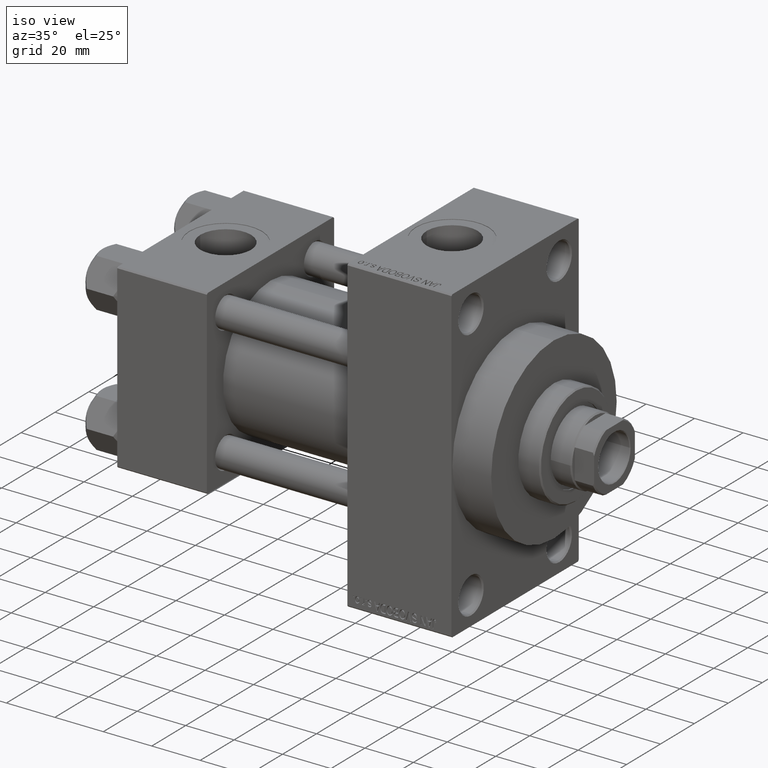
[diagram: clean part render]
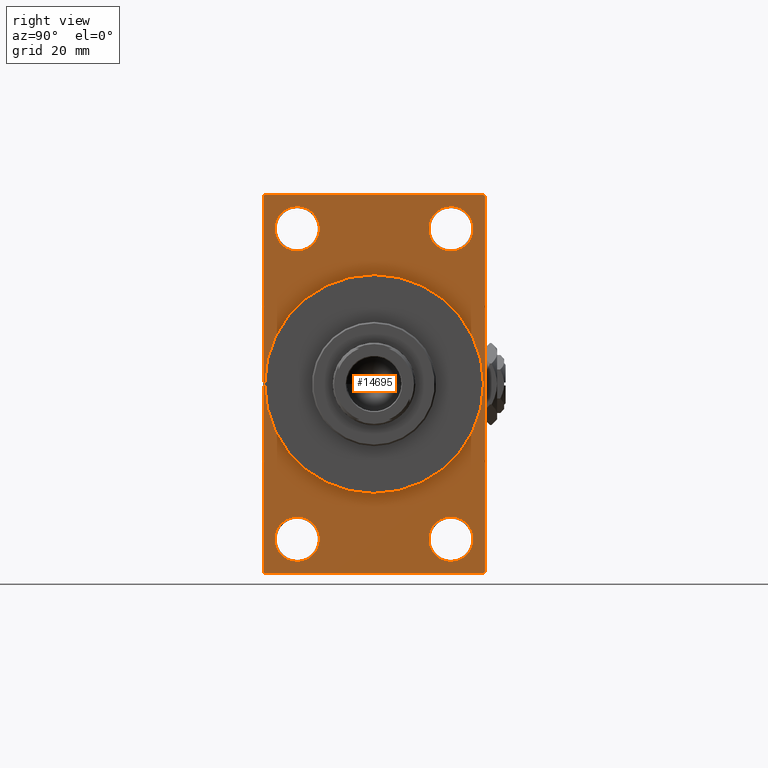
[diagram: tour spotlight — one face highlighted and labeled with its STEP entity id]
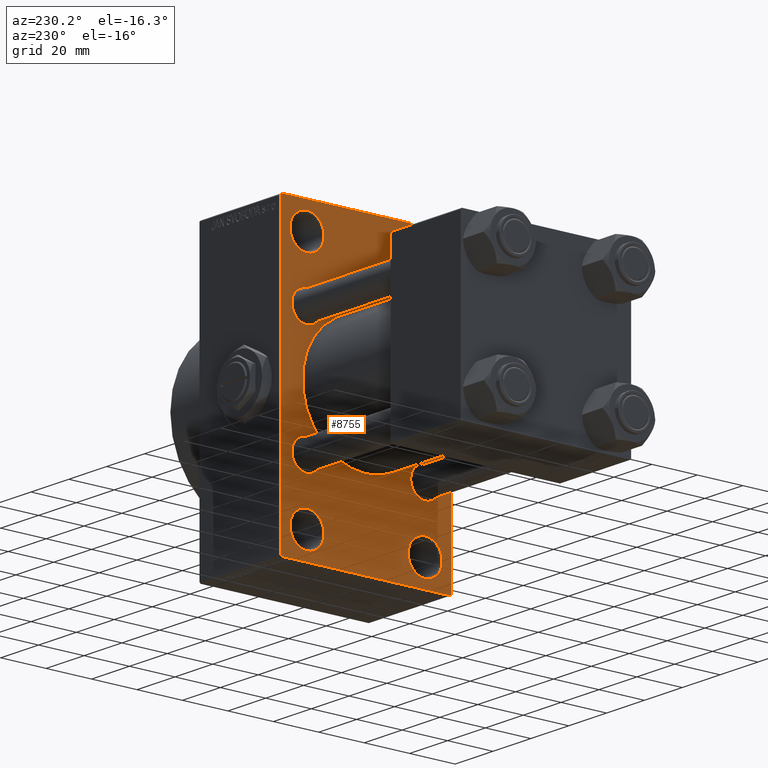
[diagram: tour spotlight — one face highlighted and labeled with its STEP entity id]
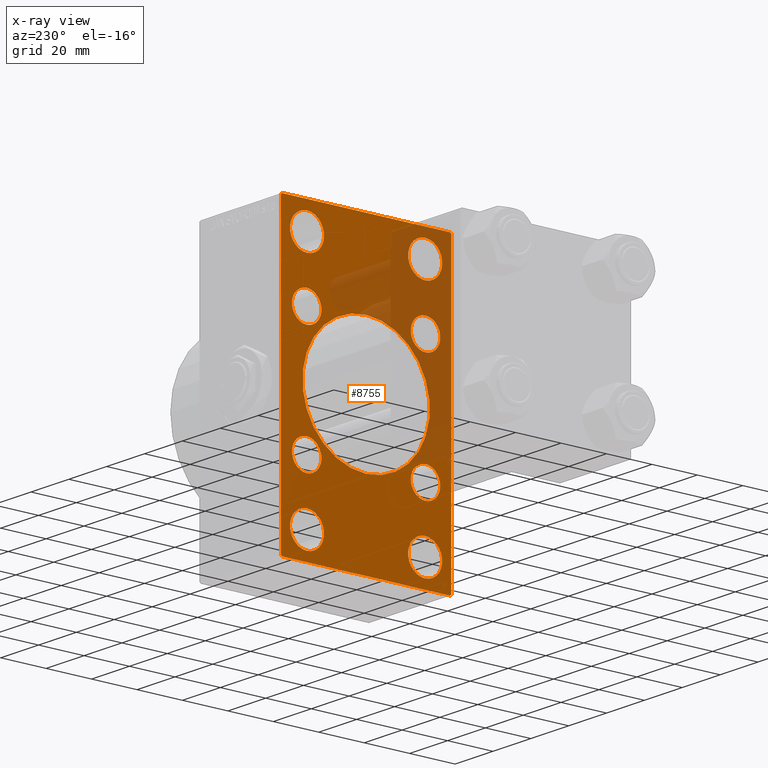
[diagram: x-ray of the same camera — body ghosted, this tour face saturated]
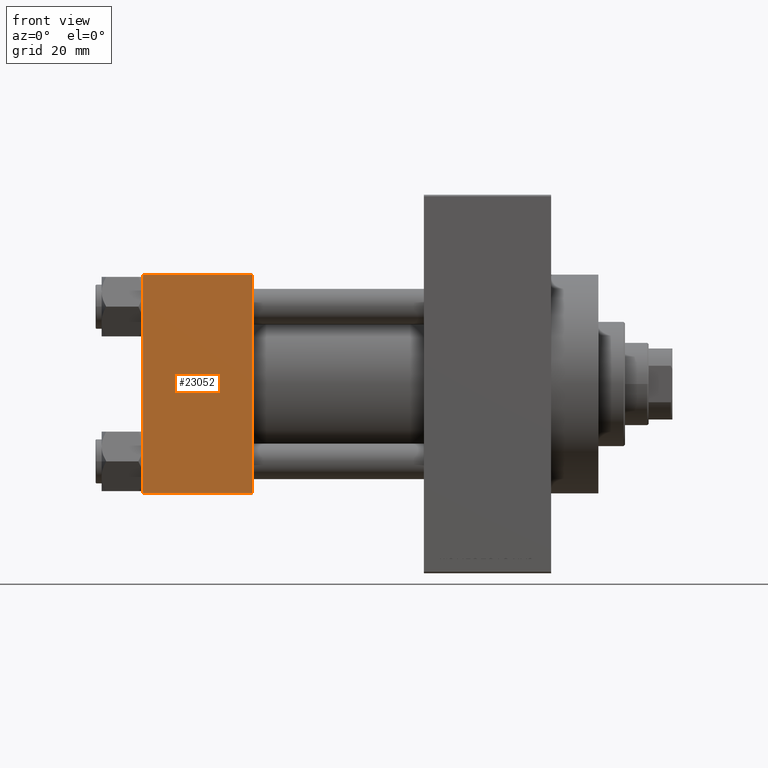
[diagram: tour spotlight — one face highlighted and labeled with its STEP entity id]
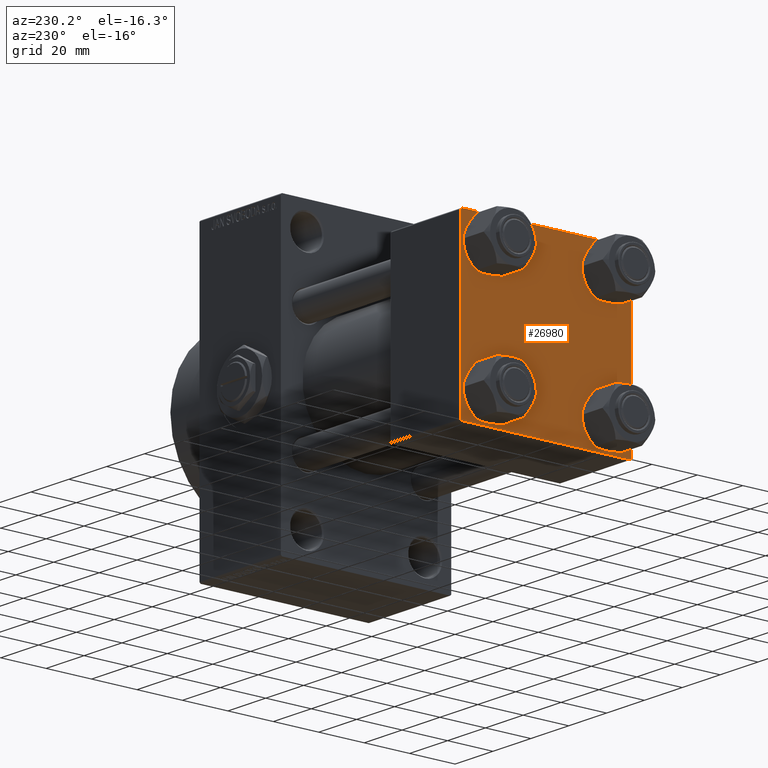
[diagram: tour spotlight — one face highlighted and labeled with its STEP entity id]
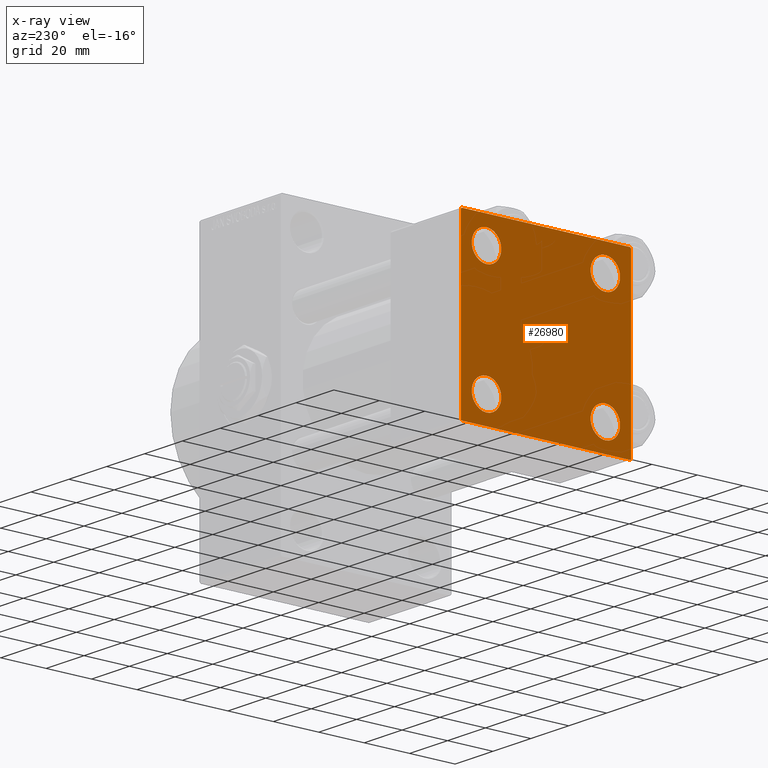
[diagram: x-ray of the same camera — body ghosted, this tour face saturated]
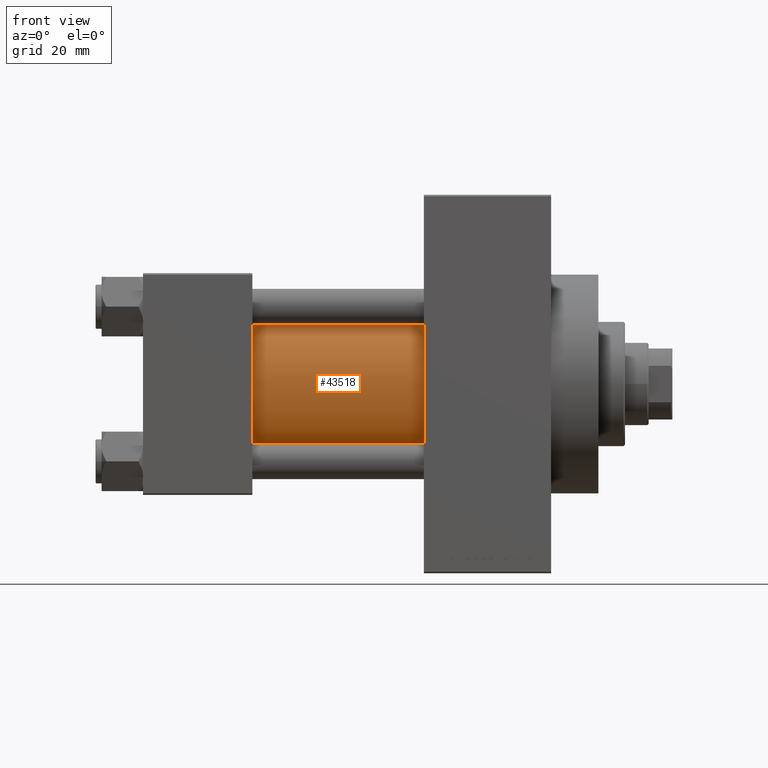
[diagram: tour spotlight — one face highlighted and labeled with its STEP entity id]
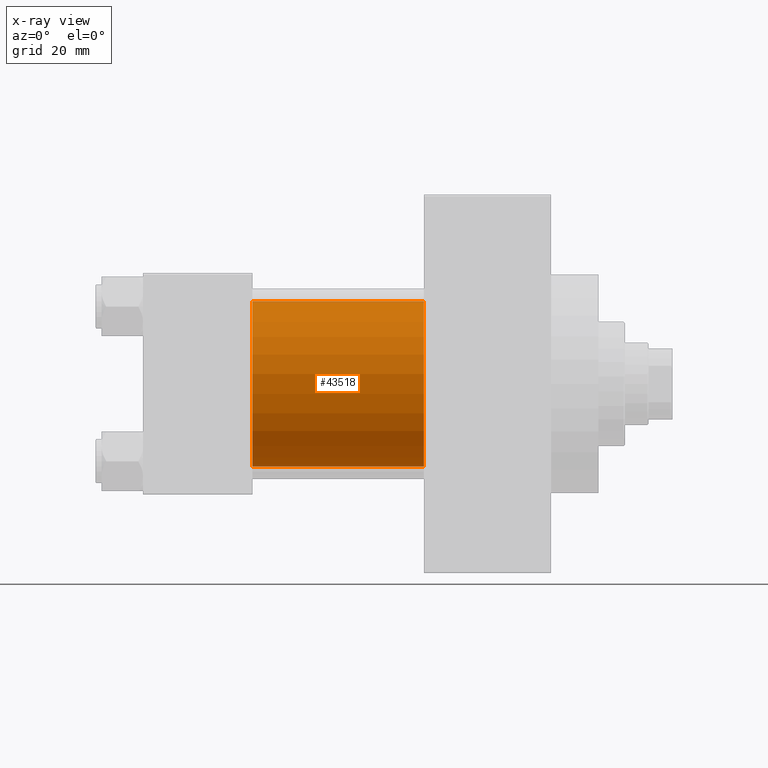
[diagram: x-ray of the same camera — body ghosted, this tour face saturated]
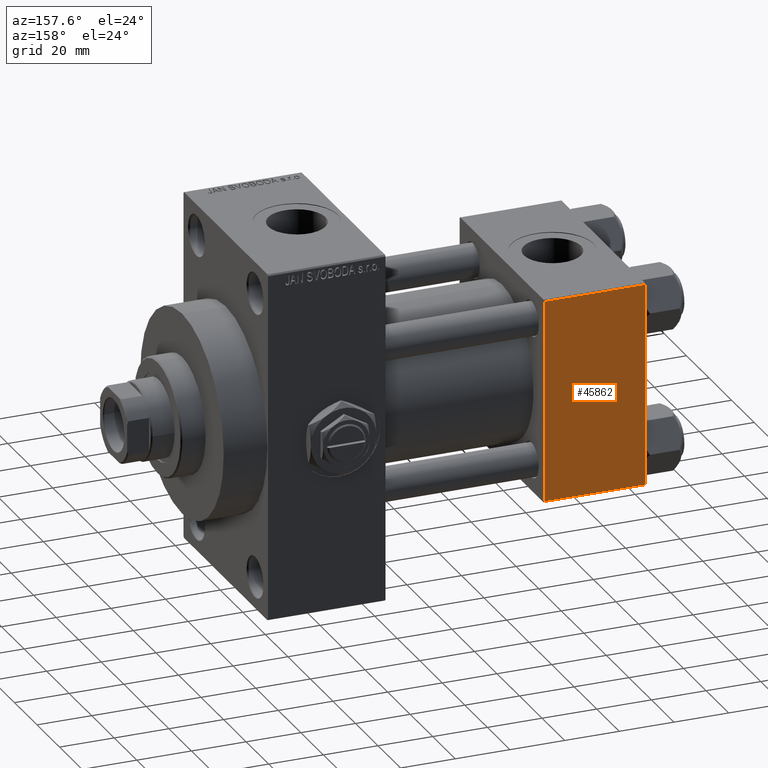
[diagram: tour spotlight — one face highlighted and labeled with its STEP entity id]
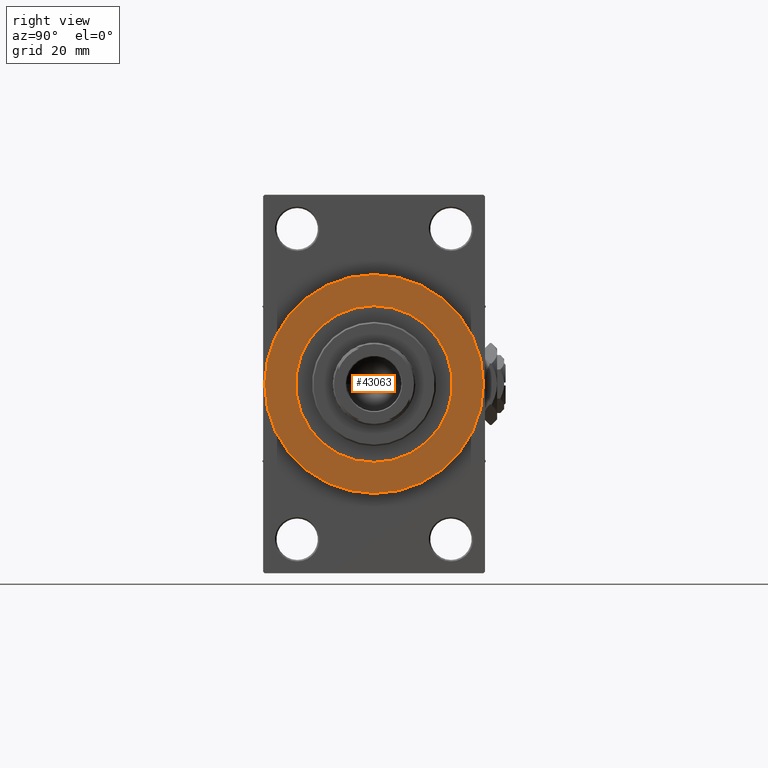
[diagram: tour spotlight — one face highlighted and labeled with its STEP entity id]
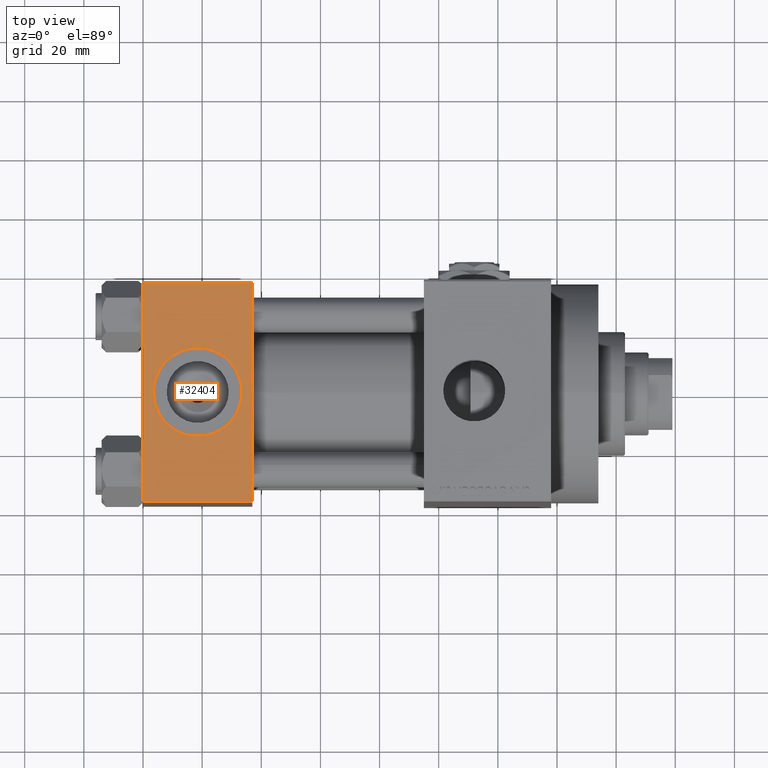
[diagram: tour spotlight — one face highlighted and labeled with its STEP entity id]
A machine part: a face-by-face anatomy tour. The part has 1151 B-rep faces; the first image is the clean iso view, then the 8 largest visible faces are spotlighted one at a time (largest first), each with its STEP entity span.

Face 1 — right view, entity #14695. In plain terms, the highlighted planar face has unit normal (-1, 0, 0).
Definition (entity closure, byte-faithful):
#966 = VERTEX_POINT ( 'NONE', #7745 ) ;
#1483 = EDGE_CURVE ( 'NONE', #20075, #40640, #36769, .T. ) ;
#1599 = CARTESIAN_POINT ( 'NONE',  ( 138.0000000000000000, 4.531193156845206793E-15, -37.00000000000000000 ) ) ;
#1739 = CIRCLE ( 'NONE', #7288, 7.500000000000007105 ) ;
#1848 = VERTEX_POINT ( 'NONE', #28783 ) ;
#2573 = CARTESIAN_POINT ( 'NONE',  ( 138.0000000000000000, 26.00000000000000000, 52.49999999999999289 ) ) ;
#2688 = VERTEX_POINT ( 'NONE', #20231 ) ;
#2739 = DIRECTION ( 'NONE',  ( -1.000000000000000000, 0.000000000000000000, -0.000000000000000000 ) ) ;
#2763 = CIRCLE ( 'NONE', #31201, 7.500000000000007105 ) ;
#2787 = ORIENTED_EDGE ( 'NONE', *, *, #17491, .T. ) ;
#3031 = CARTESIAN_POINT ( 'NONE',  ( 138.0000000000000000, 26.00000000000000000, 60.00000000000000000 ) ) ;
#3104 = LINE ( 'NONE', #25617, #4670 ) ;
#4648 = DIRECTION ( 'NONE',  ( 0.000000000000000000, 0.000000000000000000, 1.000000000000000000 ) ) ;
#4670 = VECTOR ( 'NONE', #47409, 1000.000000000000000 ) ;
#5324 = DIRECTION ( 'NONE',  ( 0.000000000000000000, 0.000000000000000000, 1.000000000000000000 ) ) ;
#6093 = FACE_BOUND ( 'NONE', #27922, .T. ) ;
#6396 = DIRECTION ( 'NONE',  ( -1.000000000000000000, 0.000000000000000000, -0.000000000000000000 ) ) ;
#7201 = AXIS2_PLACEMENT_3D ( 'NONE', #12927, #19847, #11939 ) ;
#7203 = CARTESIAN_POINT ( 'NONE',  ( 138.0000000000000000, 26.00000000000000000, -44.99999999999998579 ) ) ;
#7219 = EDGE_CURVE ( 'NONE', #18722, #8579, #26305, .T. ) ;
#7222 = CARTESIAN_POINT ( 'NONE',  ( 138.0000000000000000, 36.99999999999997158, 63.99999999999998579 ) ) ;
#7288 = AXIS2_PLACEMENT_3D ( 'NONE', #46424, #9312, #27593 ) ;
#7745 = CARTESIAN_POINT ( 'NONE',  ( 138.0000000000000000, -36.99999999999995737, 63.99999999999997158 ) ) ;
#8129 = CARTESIAN_POINT ( 'NONE',  ( 138.0000000000000000, -37.49999999999999289, 63.49999999999994316 ) ) ;
#8206 = VERTEX_POINT ( 'NONE', #18489 ) ;
#8361 = VERTEX_POINT ( 'NONE', #31789 ) ;
#8579 = VERTEX_POINT ( 'NONE', #11968 ) ;
#8870 = AXIS2_PLACEMENT_3D ( 'NONE', #32651, #2739, #25731 ) ;
#9045 = CARTESIAN_POINT ( 'NONE',  ( 138.0000000000000000, -25.99999999999999645, -52.49999999999999289 ) ) ;
#9261 = DIRECTION ( 'NONE',  ( 0.000000000000000000, -1.000000000000000000, -1.850371707708594563E-16 ) ) ;
#9312 = DIRECTION ( 'NONE',  ( -1.000000000000000000, 0.000000000000000000, -0.000000000000000000 ) ) ;
#9441 = AXIS2_PLACEMENT_3D ( 'NONE', #9045, #39215, #5324 ) ;
#9570 = CIRCLE ( 'NONE', #7201, 7.500000000000007105 ) ;
#11828 = LINE ( 'NONE', #8129, #29505 ) ;
#11939 = DIRECTION ( 'NONE',  ( 0.000000000000000000, 0.000000000000000000, 1.000000000000000000 ) ) ;
#11968 = CARTESIAN_POINT ( 'NONE',  ( 138.0000000000000000, -25.99999999999999645, -44.99999999999998579 ) ) ;
#12495 = EDGE_CURVE ( 'NONE', #44279, #966, #20141, .T. ) ;
#12927 = CARTESIAN_POINT ( 'NONE',  ( 138.0000000000000000, 26.00000000000000000, -52.49999999999999289 ) ) ;
#13348 = EDGE_CURVE ( 'NONE', #2688, #44279, #3104, .T. ) ;
#13647 = DIRECTION ( 'NONE',  ( 0.000000000000000000, -5.421010862427522170E-17, -1.000000000000000000 ) ) ;
#13669 = EDGE_CURVE ( 'NONE', #8206, #31277, #25560, .T. ) ;
#13771 = FACE_OUTER_BOUND ( 'NONE', #18229, .T. ) ;
#14446 = ORIENTED_EDGE ( 'NONE', *, *, #25138, .T. ) ;
#14695 = ADVANCED_FACE ( 'NONE', ( #36035, #6093, #47419, #24898, #43220, #13771 ), #25129, .F. ) ;
#15152 = AXIS2_PLACEMENT_3D ( 'NONE', #15925, #39190, #34724 ) ;
#15160 = CARTESIAN_POINT ( 'NONE',  ( 138.0000000000000000, -36.99999999999993605, -64.00000000000001421 ) ) ;
#15531 = DIRECTION ( 'NONE',  ( -1.000000000000000000, 0.000000000000000000, -0.000000000000000000 ) ) ;
#15925 = CARTESIAN_POINT ( 'NONE',  ( 138.0000000000000000, 0.000000000000000000, 0.000000000000000000 ) ) ;
#16365 = EDGE_CURVE ( 'NONE', #28818, #1848, #33076, .T. ) ;
#17350 = CARTESIAN_POINT ( 'NONE',  ( 138.0000000000000000, 37.50000000000000000, 63.99999999999998579 ) ) ;
#17462 = CARTESIAN_POINT ( 'NONE',  ( 138.0000000000000000, 36.99999999999999289, -64.00000000000000000 ) ) ;
#17491 = EDGE_CURVE ( 'NONE', #8579, #18722, #36266, .T. ) ;
#18229 = EDGE_LOOP ( 'NONE', ( #37209, #14446, #45191, #47189, #33163, #34161, #41445, #47450 ) ) ;
#18489 = CARTESIAN_POINT ( 'NONE',  ( 138.0000000000000000, -37.49999999999999289, 63.49999999999994316 ) ) ;
#18722 = VERTEX_POINT ( 'NONE', #46743 ) ;
#18775 = DIRECTION ( 'NONE',  ( -0.000000000000000000, -0.7071067811865524577, -0.7071067811865426878 ) ) ;
#18908 = VECTOR ( 'NONE', #36201, 1000.000000000000000 ) ;
#19230 = EDGE_LOOP ( 'NONE', ( #31319, #20966 ) ) ;
#19325 = CARTESIAN_POINT ( 'NONE',  ( 138.0000000000000000, 0.000000000000000000, 0.000000000000000000 ) ) ;
#19847 = DIRECTION ( 'NONE',  ( -1.000000000000000000, 0.000000000000000000, -0.000000000000000000 ) ) ;
#20075 = VERTEX_POINT ( 'NONE', #17462 ) ;
#20141 = LINE ( 'NONE', #24092, #39428 ) ;
#20231 = CARTESIAN_POINT ( 'NONE',  ( 138.0000000000000000, 37.50000000000000000, 63.49999999999998579 ) ) ;
#20966 = ORIENTED_EDGE ( 'NONE', *, *, #38488, .T. ) ;
#21114 = DIRECTION ( 'NONE',  ( 0.000000000000000000, 0.000000000000000000, 1.000000000000000000 ) ) ;
#21170 = CARTESIAN_POINT ( 'NONE',  ( 138.0000000000000000, 0.000000000000000000, 0.000000000000000000 ) ) ;
#21459 = EDGE_LOOP ( 'NONE', ( #32030, #44715 ) ) ;
#22439 = ORIENTED_EDGE ( 'NONE', *, *, #23605, .F. ) ;
#22684 = DIRECTION ( 'NONE',  ( -0.000000000000000000, 0.7071067811865573427, 0.7071067811865378028 ) ) ;
#22939 = VECTOR ( 'NONE', #44436, 1000.000000000000000 ) ;
#23381 = EDGE_CURVE ( 'NONE', #8361, #46180, #1739, .T. ) ;
#23509 = ORIENTED_EDGE ( 'NONE', *, *, #33724, .T. ) ;
#23605 = EDGE_CURVE ( 'NONE', #43433, #39209, #34105, .T. ) ;
#23855 = CIRCLE ( 'NONE', #8870, 7.500000000000007105 ) ;
#23939 = CIRCLE ( 'NONE', #32616, 37.00000000000000000 ) ;
#24092 = CARTESIAN_POINT ( 'NONE',  ( 138.0000000000000000, 37.50000000000000000, 63.99999999999998579 ) ) ;
#24162 = CARTESIAN_POINT ( 'NONE',  ( 138.0000000000000000, 26.00000000000000000, -52.49999999999999289 ) ) ;
#24828 = CARTESIAN_POINT ( 'NONE',  ( 138.0000000000000000, -37.49999999999999289, 63.99999999999997158 ) ) ;
#24898 = FACE_BOUND ( 'NONE', #19230, .T. ) ;
#25129 = PLANE ( 'NONE',  #27605 ) ;
#25138 = EDGE_CURVE ( 'NONE', #31277, #40640, #26700, .T. ) ;
#25560 = LINE ( 'NONE', #24828, #18908 ) ;
#25617 = CARTESIAN_POINT ( 'NONE',  ( 138.0000000000000000, 36.99999999999997158, 63.99999999999998579 ) ) ;
#25731 = DIRECTION ( 'NONE',  ( 0.000000000000000000, 0.000000000000000000, 1.000000000000000000 ) ) ;
#26260 = CARTESIAN_POINT ( 'NONE',  ( 138.0000000000000000, -37.49999999999999289, -63.49999999999997158 ) ) ;
#26305 = CIRCLE ( 'NONE', #38180, 7.500000000000007105 ) ;
#26700 = LINE ( 'NONE', #27678, #42852 ) ;
#26723 = DIRECTION ( 'NONE',  ( 0.000000000000000000, 0.000000000000000000, -1.000000000000000000 ) ) ;
#27593 = DIRECTION ( 'NONE',  ( 0.000000000000000000, 0.000000000000000000, 1.000000000000000000 ) ) ;
#27605 = AXIS2_PLACEMENT_3D ( 'NONE', #21170, #39262, #36264 ) ;
#27678 = CARTESIAN_POINT ( 'NONE',  ( 138.0000000000000000, -36.99999999999993605, -64.00000000000001421 ) ) ;
#27922 = EDGE_LOOP ( 'NONE', ( #46843, #2787 ) ) ;
#28783 = CARTESIAN_POINT ( 'NONE',  ( 138.0000000000000000, 26.00000000000000000, -60.00000000000000000 ) ) ;
#28818 = VERTEX_POINT ( 'NONE', #7203 ) ;
#29505 = VECTOR ( 'NONE', #18775, 1000.000000000000000 ) ;
#29803 = DIRECTION ( 'NONE',  ( 0.000000000000000000, 0.000000000000000000, 1.000000000000000000 ) ) ;
#29985 = EDGE_CURVE ( 'NONE', #39209, #43433, #23939, .T. ) ;
#30456 = EDGE_CURVE ( 'NONE', #966, #8206, #11828, .T. ) ;
#30501 = CARTESIAN_POINT ( 'NONE',  ( 138.0000000000000000, 0.000000000000000000, 37.00000000000000000 ) ) ;
#31201 = AXIS2_PLACEMENT_3D ( 'NONE', #37060, #6396, #33094 ) ;
#31277 = VERTEX_POINT ( 'NONE', #26260 ) ;
#31319 = ORIENTED_EDGE ( 'NONE', *, *, #23381, .T. ) ;
#31789 = CARTESIAN_POINT ( 'NONE',  ( 138.0000000000000000, 26.00000000000000000, 44.99999999999998579 ) ) ;
#32030 = ORIENTED_EDGE ( 'NONE', *, *, #40665, .T. ) ;
#32616 = AXIS2_PLACEMENT_3D ( 'NONE', #19325, #37868, #26723 ) ;
#32651 = CARTESIAN_POINT ( 'NONE',  ( 138.0000000000000000, -25.99999999999999645, 52.50000000000000000 ) ) ;
#33036 = CARTESIAN_POINT ( 'NONE',  ( 138.0000000000000000, 37.49999999999999289, -64.00000000000000000 ) ) ;
#33076 = CIRCLE ( 'NONE', #41784, 7.500000000000007105 ) ;
#33094 = DIRECTION ( 'NONE',  ( 0.000000000000000000, 0.000000000000000000, 1.000000000000000000 ) ) ;
#33163 = ORIENTED_EDGE ( 'NONE', *, *, #33368, .F. ) ;
#33368 = EDGE_CURVE ( 'NONE', #2688, #46445, #43576, .T. ) ;
#33724 = EDGE_CURVE ( 'NONE', #33809, #41386, #2763, .T. ) ;
#33809 = VERTEX_POINT ( 'NONE', #34805 ) ;
#33814 = LINE ( 'NONE', #37773, #45237 ) ;
#34105 = CIRCLE ( 'NONE', #15152, 37.00000000000000000 ) ;
#34161 = ORIENTED_EDGE ( 'NONE', *, *, #13348, .T. ) ;
#34724 = DIRECTION ( 'NONE',  ( 0.000000000000000000, 0.000000000000000000, -1.000000000000000000 ) ) ;
#34805 = CARTESIAN_POINT ( 'NONE',  ( 138.0000000000000000, -25.99999999999999645, 44.99999999999999289 ) ) ;
#35362 = DIRECTION ( 'NONE',  ( 0.000000000000000000, 0.7071067811865574537, -0.7071067811865376918 ) ) ;
#36035 = FACE_BOUND ( 'NONE', #36349, .T. ) ;
#36201 = DIRECTION ( 'NONE',  ( 0.000000000000000000, 0.000000000000000000, -1.000000000000000000 ) ) ;
#36264 = DIRECTION ( 'NONE',  ( -0.000000000000000000, 0.000000000000000000, 1.000000000000000000 ) ) ;
#36266 = CIRCLE ( 'NONE', #9441, 7.500000000000007105 ) ;
#36349 = EDGE_LOOP ( 'NONE', ( #23509, #46990 ) ) ;
#36769 = LINE ( 'NONE', #33036, #22939 ) ;
#37060 = CARTESIAN_POINT ( 'NONE',  ( 138.0000000000000000, -25.99999999999999645, 52.50000000000000000 ) ) ;
#37209 = ORIENTED_EDGE ( 'NONE', *, *, #13669, .T. ) ;
#37512 = VECTOR ( 'NONE', #13647, 1000.000000000000000 ) ;
#37773 = CARTESIAN_POINT ( 'NONE',  ( 138.0000000000000000, 37.49999999999999289, -63.50000000000001421 ) ) ;
#37795 = CARTESIAN_POINT ( 'NONE',  ( 138.0000000000000000, -25.99999999999999645, 60.00000000000000711 ) ) ;
#37868 = DIRECTION ( 'NONE',  ( 1.000000000000000000, 0.000000000000000000, 0.000000000000000000 ) ) ;
#38048 = CARTESIAN_POINT ( 'NONE',  ( 138.0000000000000000, -25.99999999999999645, -52.49999999999999289 ) ) ;
#38180 = AXIS2_PLACEMENT_3D ( 'NONE', #38048, #15531, #4648 ) ;
#38488 = EDGE_CURVE ( 'NONE', #46180, #8361, #40826, .T. ) ;
#39190 = DIRECTION ( 'NONE',  ( 1.000000000000000000, 0.000000000000000000, 0.000000000000000000 ) ) ;
#39209 = VERTEX_POINT ( 'NONE', #1599 ) ;
#39215 = DIRECTION ( 'NONE',  ( -1.000000000000000000, 0.000000000000000000, -0.000000000000000000 ) ) ;
#39260 = DIRECTION ( 'NONE',  ( -1.000000000000000000, 0.000000000000000000, -0.000000000000000000 ) ) ;
#39262 = DIRECTION ( 'NONE',  ( -1.000000000000000000, 0.000000000000000000, -0.000000000000000000 ) ) ;
#39428 = VECTOR ( 'NONE', #9261, 1000.000000000000000 ) ;
#40640 = VERTEX_POINT ( 'NONE', #15160 ) ;
#40665 = EDGE_CURVE ( 'NONE', #1848, #28818, #9570, .T. ) ;
#40826 = CIRCLE ( 'NONE', #43194, 7.500000000000007105 ) ;
#41386 = VERTEX_POINT ( 'NONE', #37795 ) ;
#41445 = ORIENTED_EDGE ( 'NONE', *, *, #12495, .T. ) ;
#41784 = AXIS2_PLACEMENT_3D ( 'NONE', #24162, #39260, #29803 ) ;
#42852 = VECTOR ( 'NONE', #35362, 999.9999999999998863 ) ;
#43162 = DIRECTION ( 'NONE',  ( -1.000000000000000000, 0.000000000000000000, -0.000000000000000000 ) ) ;
#43194 = AXIS2_PLACEMENT_3D ( 'NONE', #2573, #43162, #21114 ) ;
#43220 = FACE_BOUND ( 'NONE', #48909, .T. ) ;
#43433 = VERTEX_POINT ( 'NONE', #30501 ) ;
#43576 = LINE ( 'NONE', #17350, #37512 ) ;
#44279 = VERTEX_POINT ( 'NONE', #7222 ) ;
#44436 = DIRECTION ( 'NONE',  ( 0.000000000000000000, -1.000000000000000000, -1.850371707708594563E-16 ) ) ;
#44715 = ORIENTED_EDGE ( 'NONE', *, *, #16365, .T. ) ;
#44914 = ORIENTED_EDGE ( 'NONE', *, *, #29985, .F. ) ;
#45191 = ORIENTED_EDGE ( 'NONE', *, *, #1483, .F. ) ;
#45237 = VECTOR ( 'NONE', #22684, 1000.000000000000000 ) ;
#46180 = VERTEX_POINT ( 'NONE', #3031 ) ;
#46424 = CARTESIAN_POINT ( 'NONE',  ( 138.0000000000000000, 26.00000000000000000, 52.49999999999999289 ) ) ;
#46445 = VERTEX_POINT ( 'NONE', #48009 ) ;
#46743 = CARTESIAN_POINT ( 'NONE',  ( 138.0000000000000000, -25.99999999999999645, -60.00000000000000000 ) ) ;
#46843 = ORIENTED_EDGE ( 'NONE', *, *, #7219, .T. ) ;
#46990 = ORIENTED_EDGE ( 'NONE', *, *, #47140, .T. ) ;
#47140 = EDGE_CURVE ( 'NONE', #41386, #33809, #23855, .T. ) ;
#47189 = ORIENTED_EDGE ( 'NONE', *, *, #47622, .T. ) ;
#47409 = DIRECTION ( 'NONE',  ( 0.000000000000000000, -0.7071067811865672237, 0.7071067811865279218 ) ) ;
#47419 = FACE_BOUND ( 'NONE', #21459, .T. ) ;
#47450 = ORIENTED_EDGE ( 'NONE', *, *, #30456, .T. ) ;
#47622 = EDGE_CURVE ( 'NONE', #20075, #46445, #33814, .T. ) ;
#48009 = CARTESIAN_POINT ( 'NONE',  ( 138.0000000000000000, 37.49999999999999289, -63.50000000000001421 ) ) ;
#48909 = EDGE_LOOP ( 'NONE', ( #22439, #44914 ) ) ;

Face 2 — auxiliary view, entity #8755. An x-ray twin of the same camera follows (body ghosted, this face saturated) — the face is partly hidden behind the body. In plain terms, the highlighted planar face has unit normal (-1, 0, 0).
Definition (entity closure, byte-faithful):
#619 = DIRECTION ( 'NONE',  ( 0.000000000000000000, 0.000000000000000000, 1.000000000000000000 ) ) ;
#951 = LINE ( 'NONE', #23220, #11096 ) ;
#1172 = DIRECTION ( 'NONE',  ( 1.000000000000000000, -0.000000000000000000, 0.000000000000000000 ) ) ;
#1198 = VERTEX_POINT ( 'NONE', #42000 ) ;
#1247 = EDGE_CURVE ( 'NONE', #34582, #1198, #27676, .T. ) ;
#1545 = EDGE_CURVE ( 'NONE', #33180, #3719, #22131, .T. ) ;
#1579 = CARTESIAN_POINT ( 'NONE',  ( 95.00000000000000000, 26.00000000000000000, -59.99999999999997158 ) ) ;
#2522 = AXIS2_PLACEMENT_3D ( 'NONE', #26572, #40708, #48870 ) ;
#2588 = AXIS2_PLACEMENT_3D ( 'NONE', #17141, #13425, #28976 ) ;
#2628 = ORIENTED_EDGE ( 'NONE', *, *, #17538, .T. ) ;
#2938 = EDGE_CURVE ( 'NONE', #41882, #8431, #8807, .T. ) ;
#3208 = FACE_BOUND ( 'NONE', #42191, .T. ) ;
#3237 = CARTESIAN_POINT ( 'NONE',  ( 95.00000000000000000, 26.14999999999999858, -19.64999999999999503 ) ) ;
#3372 = ORIENTED_EDGE ( 'NONE', *, *, #47046, .T. ) ;
#3719 = VERTEX_POINT ( 'NONE', #38799 ) ;
#4427 = DIRECTION ( 'NONE',  ( 0.000000000000000000, -5.421010862427522170E-17, -1.000000000000000000 ) ) ;
#4453 = CARTESIAN_POINT ( 'NONE',  ( 95.00000000000000000, 26.00000000000000000, -52.49999999999999289 ) ) ;
#4578 = DIRECTION ( 'NONE',  ( 1.000000000000000000, -0.000000000000000000, 0.000000000000000000 ) ) ;
#4693 = DIRECTION ( 'NONE',  ( 0.000000000000000000, 0.000000000000000000, -1.000000000000000000 ) ) ;
#4743 = CARTESIAN_POINT ( 'NONE',  ( 95.00000000000000000, -26.14999999999999147, 26.15000000000000924 ) ) ;
#4995 = VECTOR ( 'NONE', #46401, 1000.000000000000000 ) ;
#5281 = VERTEX_POINT ( 'NONE', #36823 ) ;
#5718 = VERTEX_POINT ( 'NONE', #46834 ) ;
#6144 = LINE ( 'NONE', #29120, #47518 ) ;
#6767 = DIRECTION ( 'NONE',  ( 0.000000000000000000, 0.000000000000000000, 1.000000000000000000 ) ) ;
#6916 = FACE_BOUND ( 'NONE', #17277, .T. ) ;
#6924 = EDGE_LOOP ( 'NONE', ( #44769, #17960 ) ) ;
#6969 = DIRECTION ( 'NONE',  ( 0.000000000000000000, 0.000000000000000000, 1.000000000000000000 ) ) ;
#7034 = CIRCLE ( 'NONE', #13359, 6.500000000000008882 ) ;
#7095 = EDGE_CURVE ( 'NONE', #44135, #22254, #19989, .T. ) ;
#7155 = FACE_BOUND ( 'NONE', #17319, .T. ) ;
#7638 = DIRECTION ( 'NONE',  ( 1.000000000000000000, -0.000000000000000000, 0.000000000000000000 ) ) ;
#7865 = EDGE_LOOP ( 'NONE', ( #44649, #42710 ) ) ;
#8163 = DIRECTION ( 'NONE',  ( 0.000000000000000000, 0.000000000000000000, 1.000000000000000000 ) ) ;
#8431 = VERTEX_POINT ( 'NONE', #48375 ) ;
#8448 = AXIS2_PLACEMENT_3D ( 'NONE', #42314, #23990, #43280 ) ;
#8648 = CARTESIAN_POINT ( 'NONE',  ( 95.00000000000000000, -25.99999999999999645, 52.50000000000000000 ) ) ;
#8755 = ADVANCED_FACE ( 'NONE', ( #25717, #40815, #11360, #41779, #6916, #7155, #3208, #14331, #26442, #18298 ), #25945, .T. ) ;
#8800 = DIRECTION ( 'NONE',  ( 1.000000000000000000, -0.000000000000000000, 0.000000000000000000 ) ) ;
#8807 = CIRCLE ( 'NONE', #42773, 7.499999999999978684 ) ;
#8913 = DIRECTION ( 'NONE',  ( 0.000000000000000000, 0.000000000000000000, 1.000000000000000000 ) ) ;
#9029 = CARTESIAN_POINT ( 'NONE',  ( 95.00000000000000000, 37.50000000000000000, 63.49999999999998579 ) ) ;
#9070 = VERTEX_POINT ( 'NONE', #19687 ) ;
#9447 = CIRCLE ( 'NONE', #34717, 7.499999999999978684 ) ;
#9523 = VERTEX_POINT ( 'NONE', #47073 ) ;
#9818 = EDGE_CURVE ( 'NONE', #29413, #37076, #20067, .T. ) ;
#9869 = CARTESIAN_POINT ( 'NONE',  ( 95.00000000000000000, 36.99999999999997158, 63.99999999999998579 ) ) ;
#10514 = CIRCLE ( 'NONE', #27879, 7.499999999999978684 ) ;
#10586 = CARTESIAN_POINT ( 'NONE',  ( 95.00000000000000000, 26.14999999999999858, -26.15000000000000213 ) ) ;
#10841 = CARTESIAN_POINT ( 'NONE',  ( 95.00000000000000000, 37.49999999999999289, -64.00000000000000000 ) ) ;
#11096 = VECTOR ( 'NONE', #4427, 1000.000000000000000 ) ;
#11360 = FACE_BOUND ( 'NONE', #36925, .T. ) ;
#11906 = AXIS2_PLACEMENT_3D ( 'NONE', #19974, #1172, #45956 ) ;
#12119 = DIRECTION ( 'NONE',  ( 1.000000000000000000, 0.000000000000000000, 0.000000000000000000 ) ) ;
#12158 = CIRCLE ( 'NONE', #28731, 7.499999999999978684 ) ;
#12250 = VERTEX_POINT ( 'NONE', #27595 ) ;
#12648 = CARTESIAN_POINT ( 'NONE',  ( 95.00000000000000000, 50.49999999999894840, 50.50000000000176215 ) ) ;
#12859 = CARTESIAN_POINT ( 'NONE',  ( 95.00000000000000000, -2.602085213965210642E-15, 0.000000000000000000 ) ) ;
#13359 = AXIS2_PLACEMENT_3D ( 'NONE', #4743, #30693, #46551 ) ;
#13425 = DIRECTION ( 'NONE',  ( 1.000000000000000000, -0.000000000000000000, 0.000000000000000000 ) ) ;
#13488 = VERTEX_POINT ( 'NONE', #9029 ) ;
#14209 = EDGE_CURVE ( 'NONE', #12250, #32094, #9447, .T. ) ;
#14331 = FACE_BOUND ( 'NONE', #6924, .T. ) ;
#14657 = DIRECTION ( 'NONE',  ( 0.000000000000000000, 0.000000000000000000, 1.000000000000000000 ) ) ;
#14672 = CARTESIAN_POINT ( 'NONE',  ( 95.00000000000000000, 50.49999999999948841, -50.50000000000088107 ) ) ;
#14907 = CARTESIAN_POINT ( 'NONE',  ( 95.00000000000000000, -25.99999999999999645, -52.49999999999999289 ) ) ;
#14931 = ORIENTED_EDGE ( 'NONE', *, *, #40464, .T. ) ;
#15207 = CIRCLE ( 'NONE', #19978, 6.500000000000008882 ) ;
#15795 = VERTEX_POINT ( 'NONE', #36202 ) ;
#16023 = CIRCLE ( 'NONE', #17627, 6.500000000000008882 ) ;
#16474 = LINE ( 'NONE', #45680, #40588 ) ;
#16487 = ORIENTED_EDGE ( 'NONE', *, *, #23918, .T. ) ;
#16493 = CARTESIAN_POINT ( 'NONE',  ( 95.00000000000000000, -37.49999999999999289, 63.49999999999994316 ) ) ;
#16954 = ORIENTED_EDGE ( 'NONE', *, *, #32748, .T. ) ;
#16979 = ORIENTED_EDGE ( 'NONE', *, *, #2938, .T. ) ;
#17134 = VERTEX_POINT ( 'NONE', #25982 ) ;
#17141 = CARTESIAN_POINT ( 'NONE',  ( 95.00000000000000000, -26.14999999999999147, 26.15000000000000924 ) ) ;
#17194 = ORIENTED_EDGE ( 'NONE', *, *, #22496, .T. ) ;
#17267 = VERTEX_POINT ( 'NONE', #29811 ) ;
#17277 = EDGE_LOOP ( 'NONE', ( #29074, #2628 ) ) ;
#17319 = EDGE_LOOP ( 'NONE', ( #25268, #48902 ) ) ;
#17375 = VERTEX_POINT ( 'NONE', #35001 ) ;
#17382 = CIRCLE ( 'NONE', #27641, 6.500000000000008882 ) ;
#17518 = CIRCLE ( 'NONE', #34923, 6.500000000000008882 ) ;
#17526 = LINE ( 'NONE', #10841, #22491 ) ;
#17538 = EDGE_CURVE ( 'NONE', #9070, #18963, #7034, .T. ) ;
#17627 = AXIS2_PLACEMENT_3D ( 'NONE', #34759, #8800, #28970 ) ;
#17867 = CARTESIAN_POINT ( 'NONE',  ( 95.00000000000000000, -25.99999999999999645, -52.49999999999999289 ) ) ;
#17960 = ORIENTED_EDGE ( 'NONE', *, *, #19469, .T. ) ;
#18038 = CARTESIAN_POINT ( 'NONE',  ( 95.00000000000000000, -25.99999999999999645, 52.50000000000000000 ) ) ;
#18145 = DIRECTION ( 'NONE',  ( -0.000000000000000000, -0.7071067811865573427, -0.7071067811865378028 ) ) ;
#18298 = FACE_OUTER_BOUND ( 'NONE', #27817, .T. ) ;
#18732 = ORIENTED_EDGE ( 'NONE', *, *, #14209, .T. ) ;
#18963 = VERTEX_POINT ( 'NONE', #24327 ) ;
#19127 = ORIENTED_EDGE ( 'NONE', *, *, #28026, .F. ) ;
#19469 = EDGE_CURVE ( 'NONE', #17375, #17267, #17382, .T. ) ;
#19687 = CARTESIAN_POINT ( 'NONE',  ( 95.00000000000000000, -26.14999999999999147, 19.65000000000000213 ) ) ;
#19974 = CARTESIAN_POINT ( 'NONE',  ( 95.00000000000000000, 26.14999999999999858, 26.15000000000000213 ) ) ;
#19978 = AXIS2_PLACEMENT_3D ( 'NONE', #10586, #21949, #21462 ) ;
#19989 = CIRCLE ( 'NONE', #43717, 7.499999999999978684 ) ;
#20067 = CIRCLE ( 'NONE', #23229, 28.00000000000000000 ) ;
#20537 = EDGE_CURVE ( 'NONE', #13488, #24877, #951, .T. ) ;
#20610 = VECTOR ( 'NONE', #29006, 999.9999999999998863 ) ;
#20948 = CARTESIAN_POINT ( 'NONE',  ( 95.00000000000000000, -2.602085213965210642E-15, 28.00000000000000000 ) ) ;
#21462 = DIRECTION ( 'NONE',  ( 0.000000000000000000, 0.000000000000000000, 1.000000000000000000 ) ) ;
#21471 = DIRECTION ( 'NONE',  ( 0.000000000000000000, -1.000000000000000000, -1.850371707708594563E-16 ) ) ;
#21949 = DIRECTION ( 'NONE',  ( 1.000000000000000000, -0.000000000000000000, 0.000000000000000000 ) ) ;
#22131 = CIRCLE ( 'NONE', #29251, 7.499999999999978684 ) ;
#22254 = VERTEX_POINT ( 'NONE', #48026 ) ;
#22296 = DIRECTION ( 'NONE',  ( 1.000000000000000000, -0.000000000000000000, 0.000000000000000000 ) ) ;
#22491 = VECTOR ( 'NONE', #21471, 1000.000000000000000 ) ;
#22496 = EDGE_CURVE ( 'NONE', #43186, #9523, #6144, .T. ) ;
#22891 = EDGE_CURVE ( 'NONE', #24877, #15795, #37182, .T. ) ;
#22904 = EDGE_CURVE ( 'NONE', #8431, #41882, #23020, .T. ) ;
#23020 = CIRCLE ( 'NONE', #36443, 7.499999999999978684 ) ;
#23214 = ORIENTED_EDGE ( 'NONE', *, *, #20537, .T. ) ;
#23220 = CARTESIAN_POINT ( 'NONE',  ( 95.00000000000000000, 37.50000000000000000, 63.99999999999998579 ) ) ;
#23229 = AXIS2_PLACEMENT_3D ( 'NONE', #12859, #12119, #4693 ) ;
#23454 = EDGE_CURVE ( 'NONE', #37076, #29413, #24644, .T. ) ;
#23918 = EDGE_CURVE ( 'NONE', #32094, #12250, #38863, .T. ) ;
#23982 = EDGE_CURVE ( 'NONE', #17267, #17375, #17518, .T. ) ;
#23990 = DIRECTION ( 'NONE',  ( 1.000000000000000000, -0.000000000000000000, 0.000000000000000000 ) ) ;
#24327 = CARTESIAN_POINT ( 'NONE',  ( 95.00000000000000000, -26.14999999999999147, 32.65000000000001990 ) ) ;
#24644 = CIRCLE ( 'NONE', #2522, 28.00000000000000000 ) ;
#24877 = VERTEX_POINT ( 'NONE', #46071 ) ;
#25268 = ORIENTED_EDGE ( 'NONE', *, *, #1247, .T. ) ;
#25533 = ORIENTED_EDGE ( 'NONE', *, *, #1545, .T. ) ;
#25606 = DIRECTION ( 'NONE',  ( 0.000000000000000000, 0.000000000000000000, 1.000000000000000000 ) ) ;
#25717 = FACE_BOUND ( 'NONE', #7865, .T. ) ;
#25793 = DIRECTION ( 'NONE',  ( 0.000000000000000000, 0.000000000000000000, 1.000000000000000000 ) ) ;
#25945 = PLANE ( 'NONE',  #31882 ) ;
#25982 = CARTESIAN_POINT ( 'NONE',  ( 95.00000000000000000, 26.14999999999999858, -32.65000000000001279 ) ) ;
#26010 = EDGE_CURVE ( 'NONE', #18963, #9070, #32620, .T. ) ;
#26220 = CARTESIAN_POINT ( 'NONE',  ( 95.00000000000000000, -26.14999999999999147, -26.15000000000000924 ) ) ;
#26442 = FACE_BOUND ( 'NONE', #45703, .T. ) ;
#26572 = CARTESIAN_POINT ( 'NONE',  ( 95.00000000000000000, -2.602085213965210642E-15, 0.000000000000000000 ) ) ;
#27335 = LINE ( 'NONE', #42446, #4995 ) ;
#27595 = CARTESIAN_POINT ( 'NONE',  ( 95.00000000000000000, 26.00000000000000000, -45.00000000000001421 ) ) ;
#27641 = AXIS2_PLACEMENT_3D ( 'NONE', #26220, #48767, #8163 ) ;
#27676 = CIRCLE ( 'NONE', #11906, 6.500000000000008882 ) ;
#27724 = DIRECTION ( 'NONE',  ( 0.000000000000000000, 0.7071067811865672237, -0.7071067811865279218 ) ) ;
#27817 = EDGE_LOOP ( 'NONE', ( #16954, #14931, #39011, #17194, #19127, #3372, #23214, #46664 ) ) ;
#27879 = AXIS2_PLACEMENT_3D ( 'NONE', #8648, #46751, #47004 ) ;
#28026 = EDGE_CURVE ( 'NONE', #32744, #9523, #16474, .T. ) ;
#28102 = ORIENTED_EDGE ( 'NONE', *, *, #9818, .T. ) ;
#28187 = EDGE_CURVE ( 'NONE', #3719, #33180, #12158, .T. ) ;
#28731 = AXIS2_PLACEMENT_3D ( 'NONE', #29038, #44154, #25606 ) ;
#28774 = CARTESIAN_POINT ( 'NONE',  ( 95.00000000000000000, -50.49999999999945999, -50.50000000000086686 ) ) ;
#28970 = DIRECTION ( 'NONE',  ( 0.000000000000000000, 0.000000000000000000, 1.000000000000000000 ) ) ;
#28976 = DIRECTION ( 'NONE',  ( 0.000000000000000000, 0.000000000000000000, 1.000000000000000000 ) ) ;
#29006 = DIRECTION ( 'NONE',  ( 0.000000000000000000, -0.7071067811865574537, 0.7071067811865376918 ) ) ;
#29038 = CARTESIAN_POINT ( 'NONE',  ( 95.00000000000000000, 26.00000000000000000, 52.49999999999999289 ) ) ;
#29074 = ORIENTED_EDGE ( 'NONE', *, *, #26010, .T. ) ;
#29120 = CARTESIAN_POINT ( 'NONE',  ( 95.00000000000000000, -50.49999999999970868, 50.50000000000040501 ) ) ;
#29251 = AXIS2_PLACEMENT_3D ( 'NONE', #45896, #4578, #619 ) ;
#29413 = VERTEX_POINT ( 'NONE', #20948 ) ;
#29453 = CARTESIAN_POINT ( 'NONE',  ( 95.00000000000000000, -25.99999999999999645, -59.99999999999997158 ) ) ;
#29738 = EDGE_CURVE ( 'NONE', #17134, #37734, #16023, .T. ) ;
#29748 = CIRCLE ( 'NONE', #8448, 6.500000000000008882 ) ;
#29758 = EDGE_CURVE ( 'NONE', #43186, #5718, #27335, .T. ) ;
#29811 = CARTESIAN_POINT ( 'NONE',  ( 95.00000000000000000, -26.14999999999999147, -19.65000000000000213 ) ) ;
#30693 = DIRECTION ( 'NONE',  ( 1.000000000000000000, -0.000000000000000000, 0.000000000000000000 ) ) ;
#31352 = EDGE_LOOP ( 'NONE', ( #25533, #43889 ) ) ;
#31882 = AXIS2_PLACEMENT_3D ( 'NONE', #33856, #45005, #48742 ) ;
#31952 = EDGE_LOOP ( 'NONE', ( #41178, #16979 ) ) ;
#32094 = VERTEX_POINT ( 'NONE', #1579 ) ;
#32209 = ORIENTED_EDGE ( 'NONE', *, *, #23454, .T. ) ;
#32486 = LINE ( 'NONE', #28774, #20610 ) ;
#32620 = CIRCLE ( 'NONE', #2588, 6.500000000000008882 ) ;
#32744 = VERTEX_POINT ( 'NONE', #9869 ) ;
#32748 = EDGE_CURVE ( 'NONE', #15795, #5281, #17526, .T. ) ;
#33104 = DIRECTION ( 'NONE',  ( 0.000000000000000000, 0.000000000000000000, 1.000000000000000000 ) ) ;
#33180 = VERTEX_POINT ( 'NONE', #34682 ) ;
#33856 = CARTESIAN_POINT ( 'NONE',  ( 95.00000000000000000, 0.000000000000000000, 0.000000000000000000 ) ) ;
#34582 = VERTEX_POINT ( 'NONE', #37569 ) ;
#34622 = DIRECTION ( 'NONE',  ( 1.000000000000000000, -0.000000000000000000, 0.000000000000000000 ) ) ;
#34682 = CARTESIAN_POINT ( 'NONE',  ( 95.00000000000000000, 26.00000000000000000, 59.99999999999997158 ) ) ;
#34717 = AXIS2_PLACEMENT_3D ( 'NONE', #4453, #34622, #8913 ) ;
#34759 = CARTESIAN_POINT ( 'NONE',  ( 95.00000000000000000, 26.14999999999999858, -26.15000000000000213 ) ) ;
#34923 = AXIS2_PLACEMENT_3D ( 'NONE', #45338, #44608, #14657 ) ;
#35001 = CARTESIAN_POINT ( 'NONE',  ( 95.00000000000000000, -26.14999999999999147, -32.65000000000001990 ) ) ;
#35099 = ORIENTED_EDGE ( 'NONE', *, *, #29738, .T. ) ;
#35401 = LINE ( 'NONE', #12648, #45203 ) ;
#35711 = AXIS2_PLACEMENT_3D ( 'NONE', #41621, #37421, #25793 ) ;
#36202 = CARTESIAN_POINT ( 'NONE',  ( 95.00000000000000000, 36.99999999999999289, -64.00000000000000000 ) ) ;
#36443 = AXIS2_PLACEMENT_3D ( 'NONE', #14907, #44623, #6767 ) ;
#36823 = CARTESIAN_POINT ( 'NONE',  ( 95.00000000000000000, -36.99999999999993605, -64.00000000000001421 ) ) ;
#36925 = EDGE_LOOP ( 'NONE', ( #18732, #16487 ) ) ;
#37076 = VERTEX_POINT ( 'NONE', #45316 ) ;
#37182 = LINE ( 'NONE', #14672, #39639 ) ;
#37421 = DIRECTION ( 'NONE',  ( 1.000000000000000000, -0.000000000000000000, 0.000000000000000000 ) ) ;
#37569 = CARTESIAN_POINT ( 'NONE',  ( 95.00000000000000000, 26.14999999999999858, 32.65000000000001990 ) ) ;
#37734 = VERTEX_POINT ( 'NONE', #3237 ) ;
#38684 = EDGE_CURVE ( 'NONE', #1198, #34582, #29748, .T. ) ;
#38799 = CARTESIAN_POINT ( 'NONE',  ( 95.00000000000000000, 26.00000000000000000, 45.00000000000001421 ) ) ;
#38863 = CIRCLE ( 'NONE', #35711, 7.499999999999978684 ) ;
#39011 = ORIENTED_EDGE ( 'NONE', *, *, #29758, .F. ) ;
#39639 = VECTOR ( 'NONE', #18145, 1000.000000000000000 ) ;
#40287 = DIRECTION ( 'NONE',  ( -0.000000000000000000, 0.7071067811865524577, 0.7071067811865426878 ) ) ;
#40464 = EDGE_CURVE ( 'NONE', #5281, #5718, #32486, .T. ) ;
#40588 = VECTOR ( 'NONE', #41970, 1000.000000000000000 ) ;
#40708 = DIRECTION ( 'NONE',  ( 1.000000000000000000, 0.000000000000000000, 0.000000000000000000 ) ) ;
#40815 = FACE_BOUND ( 'NONE', #31952, .T. ) ;
#41178 = ORIENTED_EDGE ( 'NONE', *, *, #22904, .T. ) ;
#41621 = CARTESIAN_POINT ( 'NONE',  ( 95.00000000000000000, 26.00000000000000000, -52.49999999999999289 ) ) ;
#41779 = FACE_BOUND ( 'NONE', #31352, .T. ) ;
#41882 = VERTEX_POINT ( 'NONE', #29453 ) ;
#41970 = DIRECTION ( 'NONE',  ( 0.000000000000000000, -1.000000000000000000, -1.850371707708594563E-16 ) ) ;
#42000 = CARTESIAN_POINT ( 'NONE',  ( 95.00000000000000000, 26.14999999999999858, 19.64999999999999147 ) ) ;
#42191 = EDGE_LOOP ( 'NONE', ( #46098, #35099 ) ) ;
#42314 = CARTESIAN_POINT ( 'NONE',  ( 95.00000000000000000, 26.14999999999999858, 26.15000000000000213 ) ) ;
#42446 = CARTESIAN_POINT ( 'NONE',  ( 95.00000000000000000, -37.49999999999999289, 63.99999999999997158 ) ) ;
#42710 = ORIENTED_EDGE ( 'NONE', *, *, #7095, .T. ) ;
#42773 = AXIS2_PLACEMENT_3D ( 'NONE', #17867, #22296, #6969 ) ;
#43186 = VERTEX_POINT ( 'NONE', #16493 ) ;
#43280 = DIRECTION ( 'NONE',  ( 0.000000000000000000, 0.000000000000000000, 1.000000000000000000 ) ) ;
#43717 = AXIS2_PLACEMENT_3D ( 'NONE', #18038, #7638, #33104 ) ;
#43889 = ORIENTED_EDGE ( 'NONE', *, *, #28187, .T. ) ;
#44135 = VERTEX_POINT ( 'NONE', #46108 ) ;
#44154 = DIRECTION ( 'NONE',  ( 1.000000000000000000, -0.000000000000000000, 0.000000000000000000 ) ) ;
#44608 = DIRECTION ( 'NONE',  ( 1.000000000000000000, -0.000000000000000000, 0.000000000000000000 ) ) ;
#44623 = DIRECTION ( 'NONE',  ( 1.000000000000000000, -0.000000000000000000, 0.000000000000000000 ) ) ;
#44649 = ORIENTED_EDGE ( 'NONE', *, *, #48239, .T. ) ;
#44769 = ORIENTED_EDGE ( 'NONE', *, *, #23982, .T. ) ;
#45005 = DIRECTION ( 'NONE',  ( -1.000000000000000000, 0.000000000000000000, -0.000000000000000000 ) ) ;
#45203 = VECTOR ( 'NONE', #27724, 1000.000000000000000 ) ;
#45316 = CARTESIAN_POINT ( 'NONE',  ( 95.00000000000000000, 8.269258236473776482E-16, -28.00000000000000000 ) ) ;
#45338 = CARTESIAN_POINT ( 'NONE',  ( 95.00000000000000000, -26.14999999999999147, -26.15000000000000924 ) ) ;
#45680 = CARTESIAN_POINT ( 'NONE',  ( 95.00000000000000000, 37.50000000000000000, 63.99999999999998579 ) ) ;
#45703 = EDGE_LOOP ( 'NONE', ( #28102, #32209 ) ) ;
#45896 = CARTESIAN_POINT ( 'NONE',  ( 95.00000000000000000, 26.00000000000000000, 52.49999999999999289 ) ) ;
#45956 = DIRECTION ( 'NONE',  ( 0.000000000000000000, 0.000000000000000000, 1.000000000000000000 ) ) ;
#46071 = CARTESIAN_POINT ( 'NONE',  ( 95.00000000000000000, 37.49999999999999289, -63.50000000000001421 ) ) ;
#46098 = ORIENTED_EDGE ( 'NONE', *, *, #47500, .T. ) ;
#46108 = CARTESIAN_POINT ( 'NONE',  ( 95.00000000000000000, -25.99999999999999645, 45.00000000000002132 ) ) ;
#46401 = DIRECTION ( 'NONE',  ( 0.000000000000000000, 0.000000000000000000, -1.000000000000000000 ) ) ;
#46551 = DIRECTION ( 'NONE',  ( 0.000000000000000000, 0.000000000000000000, 1.000000000000000000 ) ) ;
#46664 = ORIENTED_EDGE ( 'NONE', *, *, #22891, .T. ) ;
#46751 = DIRECTION ( 'NONE',  ( 1.000000000000000000, -0.000000000000000000, 0.000000000000000000 ) ) ;
#46834 = CARTESIAN_POINT ( 'NONE',  ( 95.00000000000000000, -37.49999999999999289, -63.49999999999997158 ) ) ;
#47004 = DIRECTION ( 'NONE',  ( 0.000000000000000000, 0.000000000000000000, 1.000000000000000000 ) ) ;
#47046 = EDGE_CURVE ( 'NONE', #32744, #13488, #35401, .T. ) ;
#47073 = CARTESIAN_POINT ( 'NONE',  ( 95.00000000000000000, -36.99999999999995737, 63.99999999999997158 ) ) ;
#47500 = EDGE_CURVE ( 'NONE', #37734, #17134, #15207, .T. ) ;
#47518 = VECTOR ( 'NONE', #40287, 1000.000000000000000 ) ;
#48026 = CARTESIAN_POINT ( 'NONE',  ( 95.00000000000000000, -25.99999999999999645, 59.99999999999997868 ) ) ;
#48239 = EDGE_CURVE ( 'NONE', #22254, #44135, #10514, .T. ) ;
#48375 = CARTESIAN_POINT ( 'NONE',  ( 95.00000000000000000, -25.99999999999999645, -45.00000000000001421 ) ) ;
#48742 = DIRECTION ( 'NONE',  ( -0.000000000000000000, 0.000000000000000000, 1.000000000000000000 ) ) ;
#48767 = DIRECTION ( 'NONE',  ( 1.000000000000000000, -0.000000000000000000, 0.000000000000000000 ) ) ;
#48870 = DIRECTION ( 'NONE',  ( 0.000000000000000000, 0.000000000000000000, -1.000000000000000000 ) ) ;
#48902 = ORIENTED_EDGE ( 'NONE', *, *, #38684, .T. ) ;

Face 3 — front view, entity #23052. In plain terms, the highlighted planar face has unit normal (0, 1, 0).
Definition (entity closure, byte-faithful):
#9 = EDGE_CURVE ( 'NONE', #34224, #11826, #2009, .T. ) ;
#2009 = LINE ( 'NONE', #16600, #45808 ) ;
#2857 = LINE ( 'NONE', #5587, #29359 ) ;
#3272 = ORIENTED_EDGE ( 'NONE', *, *, #10015, .T. ) ;
#3619 = CARTESIAN_POINT ( 'NONE',  ( 37.00000000000000000, -37.50000000000000711, 36.99999999999999289 ) ) ;
#5587 = CARTESIAN_POINT ( 'NONE',  ( 37.00000000000000000, -37.50000000000000000, -37.00000000000003553 ) ) ;
#5798 = VECTOR ( 'NONE', #8936, 1000.000000000000000 ) ;
#6429 = FACE_OUTER_BOUND ( 'NONE', #29947, .T. ) ;
#7814 = EDGE_CURVE ( 'NONE', #34224, #39738, #42080, .T. ) ;
#8936 = DIRECTION ( 'NONE',  ( -1.000000000000000000, 0.000000000000000000, 0.000000000000000000 ) ) ;
#9720 = ORIENTED_EDGE ( 'NONE', *, *, #7814, .T. ) ;
#10015 = EDGE_CURVE ( 'NONE', #39738, #13960, #20750, .T. ) ;
#10257 = DIRECTION ( 'NONE',  ( 1.000000000000000000, 0.000000000000000000, 0.000000000000000000 ) ) ;
#11826 = VERTEX_POINT ( 'NONE', #34027 ) ;
#13585 = DIRECTION ( 'NONE',  ( 0.000000000000000000, 9.251858538542971581E-17, -1.000000000000000000 ) ) ;
#13960 = VERTEX_POINT ( 'NONE', #31444 ) ;
#14094 = PLANE ( 'NONE',  #31712 ) ;
#14160 = DIRECTION ( 'NONE',  ( -0.000000000000000000, 1.000000000000000000, 9.251858538542971581E-17 ) ) ;
#14887 = DIRECTION ( 'NONE',  ( 0.000000000000000000, -9.251858538542971581E-17, 1.000000000000000000 ) ) ;
#14996 = ORIENTED_EDGE ( 'NONE', *, *, #9, .F. ) ;
#16600 = CARTESIAN_POINT ( 'NONE',  ( 37.00000000000000000, -37.50000000000000711, 37.49999999999999289 ) ) ;
#16927 = VECTOR ( 'NONE', #13585, 1000.000000000000000 ) ;
#20750 = LINE ( 'NONE', #47480, #16927 ) ;
#23052 = ADVANCED_FACE ( 'NONE', ( #6429 ), #14094, .F. ) ;
#23414 = EDGE_CURVE ( 'NONE', #13960, #11826, #2857, .T. ) ;
#29359 = VECTOR ( 'NONE', #10257, 1000.000000000000000 ) ;
#29947 = EDGE_LOOP ( 'NONE', ( #3272, #46044, #14996, #9720 ) ) ;
#31444 = CARTESIAN_POINT ( 'NONE',  ( 0.000000000000000000, -37.50000000000000000, -37.00000000000003553 ) ) ;
#31712 = AXIS2_PLACEMENT_3D ( 'NONE', #48072, #14160, #14887 ) ;
#34027 = CARTESIAN_POINT ( 'NONE',  ( 37.00000000000000000, -37.50000000000000000, -37.00000000000003553 ) ) ;
#34224 = VERTEX_POINT ( 'NONE', #3619 ) ;
#34890 = CARTESIAN_POINT ( 'NONE',  ( 37.00000000000000000, -37.50000000000000711, 36.99999999999999289 ) ) ;
#39360 = DIRECTION ( 'NONE',  ( 0.000000000000000000, 9.251858538542971581E-17, -1.000000000000000000 ) ) ;
#39738 = VERTEX_POINT ( 'NONE', #42070 ) ;
#42070 = CARTESIAN_POINT ( 'NONE',  ( 0.000000000000000000, -37.50000000000000711, 36.99999999999999289 ) ) ;
#42080 = LINE ( 'NONE', #34890, #5798 ) ;
#45808 = VECTOR ( 'NONE', #39360, 1000.000000000000000 ) ;
#46044 = ORIENTED_EDGE ( 'NONE', *, *, #23414, .T. ) ;
#47480 = CARTESIAN_POINT ( 'NONE',  ( 0.000000000000000000, -37.50000000000000711, 37.49999999999999289 ) ) ;
#48072 = CARTESIAN_POINT ( 'NONE',  ( 37.00000000000000000, -37.50000000000000711, 37.49999999999999289 ) ) ;

Face 4 — auxiliary view, entity #26980. An x-ray twin of the same camera follows (body ghosted, this face saturated) — the face is partly hidden behind the body. In plain terms, the highlighted planar face has unit normal (-1, 0, 0).
Definition (entity closure, byte-faithful):
#277 = DIRECTION ( 'NONE',  ( -0.000000000000000000, 0.7071067811865474617, 0.7071067811865474617 ) ) ;
#1987 = DIRECTION ( 'NONE',  ( -0.000000000000000000, -0.7071067811865474617, -0.7071067811865474617 ) ) ;
#2225 = EDGE_CURVE ( 'NONE', #10874, #35285, #27454, .T. ) ;
#2295 = CARTESIAN_POINT ( 'NONE',  ( 0.000000000000000000, 0.000000000000000000, 0.000000000000000000 ) ) ;
#2789 = EDGE_LOOP ( 'NONE', ( #11964, #12998, #26722, #13267, #46348, #17963, #40878, #24184 ) ) ;
#3175 = CARTESIAN_POINT ( 'NONE',  ( 0.000000000000000000, -26.14999999999999147, 26.15000000000000924 ) ) ;
#4351 = VERTEX_POINT ( 'NONE', #41328 ) ;
#4616 = CARTESIAN_POINT ( 'NONE',  ( 0.000000000000000000, 37.49999999999999289, 37.50000000000000000 ) ) ;
#4950 = DIRECTION ( 'NONE',  ( 0.000000000000000000, 0.000000000000000000, 1.000000000000000000 ) ) ;
#5393 = EDGE_CURVE ( 'NONE', #25958, #10874, #15753, .T. ) ;
#5514 = LINE ( 'NONE', #31977, #42104 ) ;
#5801 = AXIS2_PLACEMENT_3D ( 'NONE', #2295, #29221, #17634 ) ;
#6887 = DIRECTION ( 'NONE',  ( 0.000000000000000000, 0.000000000000000000, 1.000000000000000000 ) ) ;
#6997 = DIRECTION ( 'NONE',  ( 1.000000000000000000, -0.000000000000000000, 0.000000000000000000 ) ) ;
#7426 = VECTOR ( 'NONE', #42384, 1000.000000000000000 ) ;
#7665 = CARTESIAN_POINT ( 'NONE',  ( 0.000000000000000000, -26.14999999999999147, 19.64999999999999147 ) ) ;
#7697 = EDGE_CURVE ( 'NONE', #39738, #44750, #18835, .T. ) ;
#8334 = EDGE_LOOP ( 'NONE', ( #8335, #28576 ) ) ;
#8335 = ORIENTED_EDGE ( 'NONE', *, *, #9842, .T. ) ;
#8891 = CARTESIAN_POINT ( 'NONE',  ( 0.000000000000000000, 26.14999999999999858, 19.64999999999998437 ) ) ;
#9470 = DIRECTION ( 'NONE',  ( 0.000000000000000000, 0.7071067811865474617, -0.7071067811865474617 ) ) ;
#9550 = ORIENTED_EDGE ( 'NONE', *, *, #45459, .T. ) ;
#9842 = EDGE_CURVE ( 'NONE', #10823, #45836, #48556, .T. ) ;
#10015 = EDGE_CURVE ( 'NONE', #39738, #13960, #20750, .T. ) ;
#10024 = DIRECTION ( 'NONE',  ( 0.000000000000000000, -1.000000000000000000, -9.251858538542972814E-17 ) ) ;
#10251 = CARTESIAN_POINT ( 'NONE',  ( 0.000000000000000000, -37.00000000000000711, 37.49999999999999289 ) ) ;
#10467 = DIRECTION ( 'NONE',  ( 0.000000000000000000, 0.000000000000000000, 1.000000000000000000 ) ) ;
#10526 = VECTOR ( 'NONE', #277, 1000.000000000000114 ) ;
#10636 = CARTESIAN_POINT ( 'NONE',  ( 0.000000000000000000, 26.14999999999999858, -26.15000000000000213 ) ) ;
#10700 = FACE_BOUND ( 'NONE', #26979, .T. ) ;
#10823 = VERTEX_POINT ( 'NONE', #17234 ) ;
#10874 = VERTEX_POINT ( 'NONE', #47919 ) ;
#11294 = CIRCLE ( 'NONE', #45274, 6.500000000000023093 ) ;
#11399 = CARTESIAN_POINT ( 'NONE',  ( 0.000000000000000000, 36.99999999999997868, -37.50000000000000000 ) ) ;
#11964 = ORIENTED_EDGE ( 'NONE', *, *, #5393, .T. ) ;
#12291 = LINE ( 'NONE', #4616, #32566 ) ;
#12342 = CARTESIAN_POINT ( 'NONE',  ( 0.000000000000000000, -26.14999999999999147, -26.15000000000000924 ) ) ;
#12525 = DIRECTION ( 'NONE',  ( 0.000000000000000000, -1.000000000000000000, -9.251858538542971581E-17 ) ) ;
#12700 = VERTEX_POINT ( 'NONE', #26521 ) ;
#12998 = ORIENTED_EDGE ( 'NONE', *, *, #2225, .T. ) ;
#13110 = DIRECTION ( 'NONE',  ( 0.000000000000000000, 0.000000000000000000, 1.000000000000000000 ) ) ;
#13267 = ORIENTED_EDGE ( 'NONE', *, *, #31801, .T. ) ;
#13585 = DIRECTION ( 'NONE',  ( 0.000000000000000000, 9.251858538542971581E-17, -1.000000000000000000 ) ) ;
#13683 = FACE_OUTER_BOUND ( 'NONE', #2789, .T. ) ;
#13746 = CARTESIAN_POINT ( 'NONE',  ( 0.000000000000000000, 37.49999999999999289, -37.50000000000000000 ) ) ;
#13960 = VERTEX_POINT ( 'NONE', #31444 ) ;
#14042 = CARTESIAN_POINT ( 'NONE',  ( 0.000000000000000000, -26.14999999999999147, -32.65000000000002700 ) ) ;
#14091 = DIRECTION ( 'NONE',  ( 1.000000000000000000, -0.000000000000000000, 0.000000000000000000 ) ) ;
#14592 = DIRECTION ( 'NONE',  ( 1.000000000000000000, -0.000000000000000000, 0.000000000000000000 ) ) ;
#15414 = CARTESIAN_POINT ( 'NONE',  ( 0.000000000000000000, -37.24999999999975842, -37.25000000000027001 ) ) ;
#15427 = CIRCLE ( 'NONE', #41535, 6.500000000000023093 ) ;
#15753 = LINE ( 'NONE', #30832, #35740 ) ;
#16079 = EDGE_LOOP ( 'NONE', ( #25095, #27755 ) ) ;
#16087 = CARTESIAN_POINT ( 'NONE',  ( 0.000000000000000000, 37.24999999999998579, -37.24999999999998579 ) ) ;
#16104 = AXIS2_PLACEMENT_3D ( 'NONE', #12342, #16534, #20481 ) ;
#16534 = DIRECTION ( 'NONE',  ( 1.000000000000000000, -0.000000000000000000, 0.000000000000000000 ) ) ;
#16730 = AXIS2_PLACEMENT_3D ( 'NONE', #33131, #14592, #17821 ) ;
#16927 = VECTOR ( 'NONE', #13585, 1000.000000000000000 ) ;
#17234 = CARTESIAN_POINT ( 'NONE',  ( 0.000000000000000000, -26.14999999999999147, -19.64999999999999503 ) ) ;
#17634 = DIRECTION ( 'NONE',  ( -0.000000000000000000, 0.000000000000000000, 1.000000000000000000 ) ) ;
#17821 = DIRECTION ( 'NONE',  ( 0.000000000000000000, 0.000000000000000000, 1.000000000000000000 ) ) ;
#17963 = ORIENTED_EDGE ( 'NONE', *, *, #7697, .T. ) ;
#18053 = DIRECTION ( 'NONE',  ( 0.000000000000000000, 0.000000000000000000, 1.000000000000000000 ) ) ;
#18118 = PLANE ( 'NONE',  #5801 ) ;
#18550 = VERTEX_POINT ( 'NONE', #7665 ) ;
#18635 = CARTESIAN_POINT ( 'NONE',  ( 0.000000000000000000, 26.14999999999999858, 26.15000000000000213 ) ) ;
#18835 = LINE ( 'NONE', #38119, #10526 ) ;
#19038 = VECTOR ( 'NONE', #1987, 1000.000000000000114 ) ;
#19259 = DIRECTION ( 'NONE',  ( 0.000000000000000000, 0.000000000000000000, 1.000000000000000000 ) ) ;
#20481 = DIRECTION ( 'NONE',  ( 0.000000000000000000, 0.000000000000000000, 1.000000000000000000 ) ) ;
#20750 = LINE ( 'NONE', #47480, #16927 ) ;
#21343 = CIRCLE ( 'NONE', #31621, 6.500000000000023093 ) ;
#21389 = LINE ( 'NONE', #13746, #33481 ) ;
#21726 = DIRECTION ( 'NONE',  ( 1.000000000000000000, -0.000000000000000000, 0.000000000000000000 ) ) ;
#21970 = CARTESIAN_POINT ( 'NONE',  ( 0.000000000000000000, 36.99999999999999289, 37.50000000000000000 ) ) ;
#22184 = ORIENTED_EDGE ( 'NONE', *, *, #35349, .T. ) ;
#22475 = CARTESIAN_POINT ( 'NONE',  ( 0.000000000000000000, 26.14999999999999858, 32.65000000000002700 ) ) ;
#23679 = DIRECTION ( 'NONE',  ( 1.000000000000000000, -0.000000000000000000, 0.000000000000000000 ) ) ;
#24184 = ORIENTED_EDGE ( 'NONE', *, *, #25895, .T. ) ;
#25095 = ORIENTED_EDGE ( 'NONE', *, *, #48560, .T. ) ;
#25417 = EDGE_CURVE ( 'NONE', #43595, #18550, #28659, .T. ) ;
#25895 = EDGE_CURVE ( 'NONE', #41230, #25958, #5514, .T. ) ;
#25958 = VERTEX_POINT ( 'NONE', #43129 ) ;
#26521 = CARTESIAN_POINT ( 'NONE',  ( 0.000000000000000000, 26.14999999999999858, -32.65000000000001990 ) ) ;
#26722 = ORIENTED_EDGE ( 'NONE', *, *, #28149, .T. ) ;
#26979 = EDGE_LOOP ( 'NONE', ( #34205, #22184 ) ) ;
#26980 = ADVANCED_FACE ( 'NONE', ( #10700, #33186, #36676, #36426, #13683 ), #18118, .T. ) ;
#27145 = CIRCLE ( 'NONE', #16104, 6.500000000000015987 ) ;
#27272 = LINE ( 'NONE', #15414, #7426 ) ;
#27454 = LINE ( 'NONE', #16087, #19038 ) ;
#27632 = CARTESIAN_POINT ( 'NONE',  ( 0.000000000000000000, 26.14999999999999858, 26.15000000000000213 ) ) ;
#27681 = EDGE_CURVE ( 'NONE', #45836, #10823, #27145, .T. ) ;
#27688 = CARTESIAN_POINT ( 'NONE',  ( 0.000000000000000000, -26.14999999999999147, 26.15000000000000924 ) ) ;
#27735 = CIRCLE ( 'NONE', #46729, 6.500000000000015987 ) ;
#27755 = ORIENTED_EDGE ( 'NONE', *, *, #42343, .T. ) ;
#27932 = DIRECTION ( 'NONE',  ( 1.000000000000000000, -0.000000000000000000, 0.000000000000000000 ) ) ;
#28016 = CARTESIAN_POINT ( 'NONE',  ( 0.000000000000000000, -26.14999999999999147, 32.65000000000003411 ) ) ;
#28149 = EDGE_CURVE ( 'NONE', #35285, #4351, #21389, .T. ) ;
#28576 = ORIENTED_EDGE ( 'NONE', *, *, #27681, .T. ) ;
#28659 = CIRCLE ( 'NONE', #34995, 6.500000000000023093 ) ;
#29221 = DIRECTION ( 'NONE',  ( -1.000000000000000000, 0.000000000000000000, -0.000000000000000000 ) ) ;
#30832 = CARTESIAN_POINT ( 'NONE',  ( 0.000000000000000000, 37.49999999999999289, 37.50000000000000000 ) ) ;
#31444 = CARTESIAN_POINT ( 'NONE',  ( 0.000000000000000000, -37.50000000000000000, -37.00000000000003553 ) ) ;
#31621 = AXIS2_PLACEMENT_3D ( 'NONE', #27632, #23679, #19259 ) ;
#31801 = EDGE_CURVE ( 'NONE', #4351, #13960, #27272, .T. ) ;
#31977 = CARTESIAN_POINT ( 'NONE',  ( 0.000000000000000000, 37.24999999999999289, 37.24999999999999289 ) ) ;
#32498 = CIRCLE ( 'NONE', #16730, 6.500000000000015987 ) ;
#32537 = CARTESIAN_POINT ( 'NONE',  ( 0.000000000000000000, 26.14999999999999858, -19.64999999999998792 ) ) ;
#32566 = VECTOR ( 'NONE', #12525, 1000.000000000000000 ) ;
#33041 = VERTEX_POINT ( 'NONE', #32537 ) ;
#33131 = CARTESIAN_POINT ( 'NONE',  ( 0.000000000000000000, 26.14999999999999858, -26.15000000000000213 ) ) ;
#33186 = FACE_BOUND ( 'NONE', #8334, .T. ) ;
#33481 = VECTOR ( 'NONE', #10024, 1000.000000000000000 ) ;
#34205 = ORIENTED_EDGE ( 'NONE', *, *, #25417, .T. ) ;
#34995 = AXIS2_PLACEMENT_3D ( 'NONE', #3175, #21726, #6887 ) ;
#35042 = ORIENTED_EDGE ( 'NONE', *, *, #44519, .T. ) ;
#35285 = VERTEX_POINT ( 'NONE', #11399 ) ;
#35349 = EDGE_CURVE ( 'NONE', #18550, #43595, #15427, .T. ) ;
#35740 = VECTOR ( 'NONE', #45704, 1000.000000000000000 ) ;
#36297 = VERTEX_POINT ( 'NONE', #22475 ) ;
#36426 = FACE_BOUND ( 'NONE', #16079, .T. ) ;
#36676 = FACE_BOUND ( 'NONE', #47393, .T. ) ;
#38119 = CARTESIAN_POINT ( 'NONE',  ( -0.000000000000000000, -37.25000000000000000, 37.25000000000000000 ) ) ;
#39738 = VERTEX_POINT ( 'NONE', #42070 ) ;
#39851 = AXIS2_PLACEMENT_3D ( 'NONE', #42546, #27932, #4950 ) ;
#40878 = ORIENTED_EDGE ( 'NONE', *, *, #47723, .F. ) ;
#41230 = VERTEX_POINT ( 'NONE', #21970 ) ;
#41328 = CARTESIAN_POINT ( 'NONE',  ( 0.000000000000000000, -37.00000000000002132, -37.50000000000000711 ) ) ;
#41535 = AXIS2_PLACEMENT_3D ( 'NONE', #27688, #42800, #13110 ) ;
#42070 = CARTESIAN_POINT ( 'NONE',  ( 0.000000000000000000, -37.50000000000000711, 36.99999999999999289 ) ) ;
#42104 = VECTOR ( 'NONE', #9470, 1000.000000000000114 ) ;
#42343 = EDGE_CURVE ( 'NONE', #45723, #36297, #21343, .T. ) ;
#42384 = DIRECTION ( 'NONE',  ( 0.000000000000000000, -0.7071067811865524577, 0.7071067811865426878 ) ) ;
#42546 = CARTESIAN_POINT ( 'NONE',  ( 0.000000000000000000, -26.14999999999999147, -26.15000000000000924 ) ) ;
#42800 = DIRECTION ( 'NONE',  ( 1.000000000000000000, -0.000000000000000000, 0.000000000000000000 ) ) ;
#43129 = CARTESIAN_POINT ( 'NONE',  ( 0.000000000000000000, 37.49999999999999289, 37.00000000000000000 ) ) ;
#43595 = VERTEX_POINT ( 'NONE', #28016 ) ;
#44519 = EDGE_CURVE ( 'NONE', #12700, #33041, #27735, .T. ) ;
#44750 = VERTEX_POINT ( 'NONE', #10251 ) ;
#45274 = AXIS2_PLACEMENT_3D ( 'NONE', #18635, #6997, #10467 ) ;
#45459 = EDGE_CURVE ( 'NONE', #33041, #12700, #32498, .T. ) ;
#45704 = DIRECTION ( 'NONE',  ( 0.000000000000000000, 0.000000000000000000, -1.000000000000000000 ) ) ;
#45723 = VERTEX_POINT ( 'NONE', #8891 ) ;
#45836 = VERTEX_POINT ( 'NONE', #14042 ) ;
#46348 = ORIENTED_EDGE ( 'NONE', *, *, #10015, .F. ) ;
#46729 = AXIS2_PLACEMENT_3D ( 'NONE', #10636, #14091, #18053 ) ;
#47393 = EDGE_LOOP ( 'NONE', ( #9550, #35042 ) ) ;
#47480 = CARTESIAN_POINT ( 'NONE',  ( 0.000000000000000000, -37.50000000000000711, 37.49999999999999289 ) ) ;
#47723 = EDGE_CURVE ( 'NONE', #41230, #44750, #12291, .T. ) ;
#47919 = CARTESIAN_POINT ( 'NONE',  ( 0.000000000000000000, 37.49999999999999289, -36.99999999999998579 ) ) ;
#48556 = CIRCLE ( 'NONE', #39851, 6.500000000000015987 ) ;
#48560 = EDGE_CURVE ( 'NONE', #36297, #45723, #11294, .T. ) ;

Face 5 — front view, entity #43518. An x-ray twin of the same camera follows (body ghosted, this face saturated) — the face is partly hidden behind the body. In plain terms, the highlighted cylindrical surface (partial cylindrical patch) has radius 28 mm, axis along (-1, -0, -0).
Definition (entity closure, byte-faithful):
#1802 = FACE_OUTER_BOUND ( 'NONE', #26922, .T. ) ;
#4693 = DIRECTION ( 'NONE',  ( 0.000000000000000000, 0.000000000000000000, -1.000000000000000000 ) ) ;
#5432 = DIRECTION ( 'NONE',  ( -1.000000000000000000, -0.000000000000000000, -0.000000000000000000 ) ) ;
#6086 = EDGE_CURVE ( 'NONE', #13723, #14512, #26268, .T. ) ;
#9818 = EDGE_CURVE ( 'NONE', #29413, #37076, #20067, .T. ) ;
#10479 = CARTESIAN_POINT ( 'NONE',  ( 95.00000000000000000, -2.602085213965210642E-15, 28.00000000000000000 ) ) ;
#12119 = DIRECTION ( 'NONE',  ( 1.000000000000000000, 0.000000000000000000, 0.000000000000000000 ) ) ;
#12859 = CARTESIAN_POINT ( 'NONE',  ( 95.00000000000000000, -2.602085213965210642E-15, 0.000000000000000000 ) ) ;
#12863 = CARTESIAN_POINT ( 'NONE',  ( 95.00000000000000000, 8.269258236473776482E-16, -28.00000000000000000 ) ) ;
#13723 = VERTEX_POINT ( 'NONE', #25304 ) ;
#14512 = VERTEX_POINT ( 'NONE', #42726 ) ;
#20067 = CIRCLE ( 'NONE', #23229, 28.00000000000000000 ) ;
#20841 = DIRECTION ( 'NONE',  ( -1.000000000000000000, -0.000000000000000000, -0.000000000000000000 ) ) ;
#20948 = CARTESIAN_POINT ( 'NONE',  ( 95.00000000000000000, -2.602085213965210642E-15, 28.00000000000000000 ) ) ;
#22661 = VECTOR ( 'NONE', #44368, 1000.000000000000000 ) ;
#23229 = AXIS2_PLACEMENT_3D ( 'NONE', #12859, #12119, #4693 ) ;
#24544 = CARTESIAN_POINT ( 'NONE',  ( 95.00000000000000000, -2.602085213965210642E-15, 0.000000000000000000 ) ) ;
#25304 = CARTESIAN_POINT ( 'NONE',  ( 37.00000000000000000, -2.602085213965210642E-15, 28.00000000000000000 ) ) ;
#26268 = CIRCLE ( 'NONE', #27069, 28.00000000000000000 ) ;
#26922 = EDGE_LOOP ( 'NONE', ( #41606, #36173, #37250, #41771 ) ) ;
#27069 = AXIS2_PLACEMENT_3D ( 'NONE', #28657, #43769, #47254 ) ;
#27217 = VECTOR ( 'NONE', #5432, 1000.000000000000000 ) ;
#28657 = CARTESIAN_POINT ( 'NONE',  ( 37.00000000000000000, -2.602085213965210642E-15, 0.000000000000000000 ) ) ;
#29413 = VERTEX_POINT ( 'NONE', #20948 ) ;
#31641 = LINE ( 'NONE', #12863, #27217 ) ;
#31973 = DIRECTION ( 'NONE',  ( 0.000000000000000000, 0.000000000000000000, 1.000000000000000000 ) ) ;
#32971 = LINE ( 'NONE', #10479, #22661 ) ;
#33621 = EDGE_CURVE ( 'NONE', #37076, #14512, #31641, .T. ) ;
#36173 = ORIENTED_EDGE ( 'NONE', *, *, #9818, .F. ) ;
#37076 = VERTEX_POINT ( 'NONE', #45316 ) ;
#37250 = ORIENTED_EDGE ( 'NONE', *, *, #38608, .T. ) ;
#38608 = EDGE_CURVE ( 'NONE', #29413, #13723, #32971, .T. ) ;
#39171 = CYLINDRICAL_SURFACE ( 'NONE', #48292, 28.00000000000000000 ) ;
#41606 = ORIENTED_EDGE ( 'NONE', *, *, #33621, .F. ) ;
#41771 = ORIENTED_EDGE ( 'NONE', *, *, #6086, .T. ) ;
#42726 = CARTESIAN_POINT ( 'NONE',  ( 37.00000000000000000, 8.269258236473776482E-16, -28.00000000000000000 ) ) ;
#43518 = ADVANCED_FACE ( 'NONE', ( #1802 ), #39171, .T. ) ;
#43769 = DIRECTION ( 'NONE',  ( 1.000000000000000000, -0.000000000000000000, 0.000000000000000000 ) ) ;
#44368 = DIRECTION ( 'NONE',  ( -1.000000000000000000, -0.000000000000000000, -0.000000000000000000 ) ) ;
#45316 = CARTESIAN_POINT ( 'NONE',  ( 95.00000000000000000, 8.269258236473776482E-16, -28.00000000000000000 ) ) ;
#47254 = DIRECTION ( 'NONE',  ( 0.000000000000000000, 0.000000000000000000, 1.000000000000000000 ) ) ;
#48292 = AXIS2_PLACEMENT_3D ( 'NONE', #24544, #20841, #31973 ) ;

Face 6 — auxiliary view, entity #45862. In plain terms, the highlighted planar face has unit normal (0, 1, 0).
Definition (entity closure, byte-faithful):
#701 = EDGE_CURVE ( 'NONE', #14187, #4482, #41443, .T. ) ;
#1809 = EDGE_LOOP ( 'NONE', ( #15680, #7200, #43707, #21127 ) ) ;
#3432 = VECTOR ( 'NONE', #17772, 1000.000000000000000 ) ;
#4327 = CARTESIAN_POINT ( 'NONE',  ( 37.00000000000000000, 37.49999999999999289, -36.99999999999998579 ) ) ;
#4482 = VERTEX_POINT ( 'NONE', #4327 ) ;
#5393 = EDGE_CURVE ( 'NONE', #25958, #10874, #15753, .T. ) ;
#7200 = ORIENTED_EDGE ( 'NONE', *, *, #22272, .T. ) ;
#10874 = VERTEX_POINT ( 'NONE', #47919 ) ;
#12605 = CARTESIAN_POINT ( 'NONE',  ( 37.00000000000000000, 37.49999999999999289, 37.00000000000000000 ) ) ;
#13885 = DIRECTION ( 'NONE',  ( -1.000000000000000000, 0.000000000000000000, 0.000000000000000000 ) ) ;
#14112 = CARTESIAN_POINT ( 'NONE',  ( 37.00000000000000000, 37.49999999999999289, -36.99999999999998579 ) ) ;
#14187 = VERTEX_POINT ( 'NONE', #12605 ) ;
#15680 = ORIENTED_EDGE ( 'NONE', *, *, #701, .T. ) ;
#15753 = LINE ( 'NONE', #30832, #35740 ) ;
#17772 = DIRECTION ( 'NONE',  ( 1.000000000000000000, 0.000000000000000000, 0.000000000000000000 ) ) ;
#18177 = CARTESIAN_POINT ( 'NONE',  ( 37.00000000000000000, 37.49999999999999289, 37.50000000000000000 ) ) ;
#21127 = ORIENTED_EDGE ( 'NONE', *, *, #48825, .T. ) ;
#21138 = PLANE ( 'NONE',  #21449 ) ;
#21283 = LINE ( 'NONE', #14112, #45143 ) ;
#21449 = AXIS2_PLACEMENT_3D ( 'NONE', #18177, #36481, #25101 ) ;
#22272 = EDGE_CURVE ( 'NONE', #4482, #10874, #21283, .T. ) ;
#22624 = DIRECTION ( 'NONE',  ( 0.000000000000000000, 0.000000000000000000, -1.000000000000000000 ) ) ;
#25101 = DIRECTION ( 'NONE',  ( 0.000000000000000000, -0.000000000000000000, 1.000000000000000000 ) ) ;
#25958 = VERTEX_POINT ( 'NONE', #43129 ) ;
#29032 = FACE_OUTER_BOUND ( 'NONE', #1809, .T. ) ;
#29218 = VECTOR ( 'NONE', #22624, 1000.000000000000000 ) ;
#30832 = CARTESIAN_POINT ( 'NONE',  ( 0.000000000000000000, 37.49999999999999289, 37.50000000000000000 ) ) ;
#33333 = LINE ( 'NONE', #47470, #3432 ) ;
#35740 = VECTOR ( 'NONE', #45704, 1000.000000000000000 ) ;
#36481 = DIRECTION ( 'NONE',  ( -0.000000000000000000, 1.000000000000000000, 0.000000000000000000 ) ) ;
#41443 = LINE ( 'NONE', #41680, #29218 ) ;
#41680 = CARTESIAN_POINT ( 'NONE',  ( 37.00000000000000000, 37.49999999999999289, 37.50000000000000000 ) ) ;
#43129 = CARTESIAN_POINT ( 'NONE',  ( 0.000000000000000000, 37.49999999999999289, 37.00000000000000000 ) ) ;
#43707 = ORIENTED_EDGE ( 'NONE', *, *, #5393, .F. ) ;
#45143 = VECTOR ( 'NONE', #13885, 1000.000000000000000 ) ;
#45704 = DIRECTION ( 'NONE',  ( 0.000000000000000000, 0.000000000000000000, -1.000000000000000000 ) ) ;
#45862 = ADVANCED_FACE ( 'NONE', ( #29032 ), #21138, .T. ) ;
#47470 = CARTESIAN_POINT ( 'NONE',  ( 37.00000000000000000, 37.49999999999999289, 37.00000000000000000 ) ) ;
#47919 = CARTESIAN_POINT ( 'NONE',  ( 0.000000000000000000, 37.49999999999999289, -36.99999999999998579 ) ) ;
#48825 = EDGE_CURVE ( 'NONE', #25958, #14187, #33333, .T. ) ;

Face 7 — right view, entity #43063. In plain terms, the highlighted planar face has unit normal (1, 0, 0).
Definition (entity closure, byte-faithful):
#319 = VERTEX_POINT ( 'NONE', #5409 ) ;
#1495 = FACE_BOUND ( 'NONE', #3392, .T. ) ;
#1552 = ORIENTED_EDGE ( 'NONE', *, *, #35601, .F. ) ;
#3392 = EDGE_LOOP ( 'NONE', ( #1552, #21197 ) ) ;
#3868 = DIRECTION ( 'NONE',  ( 0.000000000000000000, 0.000000000000000000, -1.000000000000000000 ) ) ;
#4036 = CARTESIAN_POINT ( 'NONE',  ( 154.0000000000000284, 0.000000000000000000, 0.000000000000000000 ) ) ;
#4275 = CIRCLE ( 'NONE', #43789, 37.00000000000000000 ) ;
#4871 = ORIENTED_EDGE ( 'NONE', *, *, #31649, .T. ) ;
#5409 = CARTESIAN_POINT ( 'NONE',  ( 154.0000000000000284, 0.000000000000000000, -26.50000000000000355 ) ) ;
#5615 = CARTESIAN_POINT ( 'NONE',  ( 154.0000000000000284, 0.000000000000000000, 0.000000000000000000 ) ) ;
#6307 = DIRECTION ( 'NONE',  ( 0.000000000000000000, 0.000000000000000000, -1.000000000000000000 ) ) ;
#7880 = CIRCLE ( 'NONE', #14197, 26.50000000000000355 ) ;
#8252 = DIRECTION ( 'NONE',  ( 0.000000000000000000, 0.000000000000000000, -1.000000000000000000 ) ) ;
#10018 = CARTESIAN_POINT ( 'NONE',  ( 154.0000000000000284, 4.531193156845206793E-15, -37.00000000000000000 ) ) ;
#10301 = CIRCLE ( 'NONE', #37179, 37.00000000000000000 ) ;
#10828 = CARTESIAN_POINT ( 'NONE',  ( 154.0000000000000284, 3.245314017740486554E-15, 26.50000000000000355 ) ) ;
#12803 = DIRECTION ( 'NONE',  ( 1.000000000000000000, 0.000000000000000000, 0.000000000000000000 ) ) ;
#14197 = AXIS2_PLACEMENT_3D ( 'NONE', #31133, #47650, #6307 ) ;
#14282 = EDGE_LOOP ( 'NONE', ( #4871, #28631 ) ) ;
#15891 = DIRECTION ( 'NONE',  ( 1.000000000000000000, 0.000000000000000000, 0.000000000000000000 ) ) ;
#16264 = DIRECTION ( 'NONE',  ( 0.000000000000000000, 0.000000000000000000, -1.000000000000000000 ) ) ;
#18729 = EDGE_CURVE ( 'NONE', #23277, #319, #7880, .T. ) ;
#19452 = CARTESIAN_POINT ( 'NONE',  ( 154.0000000000000284, 0.000000000000000000, 0.000000000000000000 ) ) ;
#20298 = PLANE ( 'NONE',  #47465 ) ;
#20528 = DIRECTION ( 'NONE',  ( 1.000000000000000000, 0.000000000000000000, 0.000000000000000000 ) ) ;
#20964 = AXIS2_PLACEMENT_3D ( 'NONE', #5615, #12803, #16264 ) ;
#21197 = ORIENTED_EDGE ( 'NONE', *, *, #18729, .F. ) ;
#23277 = VERTEX_POINT ( 'NONE', #10828 ) ;
#23508 = CARTESIAN_POINT ( 'NONE',  ( 154.0000000000000284, 0.000000000000000000, 0.000000000000000000 ) ) ;
#24244 = DIRECTION ( 'NONE',  ( 0.000000000000000000, 0.000000000000000000, -1.000000000000000000 ) ) ;
#28063 = CIRCLE ( 'NONE', #20964, 26.50000000000000355 ) ;
#28631 = ORIENTED_EDGE ( 'NONE', *, *, #39373, .T. ) ;
#31133 = CARTESIAN_POINT ( 'NONE',  ( 154.0000000000000284, 0.000000000000000000, 0.000000000000000000 ) ) ;
#31649 = EDGE_CURVE ( 'NONE', #37768, #45855, #4275, .T. ) ;
#35601 = EDGE_CURVE ( 'NONE', #319, #23277, #28063, .T. ) ;
#37179 = AXIS2_PLACEMENT_3D ( 'NONE', #4036, #15891, #8252 ) ;
#37768 = VERTEX_POINT ( 'NONE', #38092 ) ;
#38092 = CARTESIAN_POINT ( 'NONE',  ( 154.0000000000000284, 0.000000000000000000, 37.00000000000000000 ) ) ;
#39373 = EDGE_CURVE ( 'NONE', #45855, #37768, #10301, .T. ) ;
#42333 = FACE_OUTER_BOUND ( 'NONE', #14282, .T. ) ;
#43063 = ADVANCED_FACE ( 'NONE', ( #1495, #42333 ), #20298, .T. ) ;
#43789 = AXIS2_PLACEMENT_3D ( 'NONE', #19452, #45922, #3868 ) ;
#45855 = VERTEX_POINT ( 'NONE', #10018 ) ;
#45922 = DIRECTION ( 'NONE',  ( 1.000000000000000000, 0.000000000000000000, 0.000000000000000000 ) ) ;
#47465 = AXIS2_PLACEMENT_3D ( 'NONE', #23508, #20528, #24244 ) ;
#47650 = DIRECTION ( 'NONE',  ( 1.000000000000000000, 0.000000000000000000, 0.000000000000000000 ) ) ;

Face 8 — top view, entity #32404. In plain terms, the highlighted planar face has unit normal (0, 0, -1).
Definition (entity closure, byte-faithful):
#371 = EDGE_CURVE ( 'NONE', #40743, #41230, #42769, .T. ) ;
#459 = LINE ( 'NONE', #12082, #3251 ) ;
#670 = AXIS2_PLACEMENT_3D ( 'NONE', #38817, #5184, #13315 ) ;
#2400 = CARTESIAN_POINT ( 'NONE',  ( 18.50000000000000000, -5.204170427930421283E-15, 37.50000000000000000 ) ) ;
#2989 = PLANE ( 'NONE',  #42992 ) ;
#3251 = VECTOR ( 'NONE', #31107, 1000.000000000000000 ) ;
#4616 = CARTESIAN_POINT ( 'NONE',  ( 0.000000000000000000, 37.49999999999999289, 37.50000000000000000 ) ) ;
#5184 = DIRECTION ( 'NONE',  ( 0.000000000000000000, 0.000000000000000000, 1.000000000000000000 ) ) ;
#5382 = VERTEX_POINT ( 'NONE', #30590 ) ;
#6447 = DIRECTION ( 'NONE',  ( 0.000000000000000000, 1.000000000000000000, 9.251858538542971581E-17 ) ) ;
#9134 = DIRECTION ( 'NONE',  ( -1.000000000000000000, 0.000000000000000000, 0.000000000000000000 ) ) ;
#9586 = DIRECTION ( 'NONE',  ( 1.000000000000000000, 0.000000000000000000, 0.000000000000000000 ) ) ;
#10174 = ORIENTED_EDGE ( 'NONE', *, *, #42459, .F. ) ;
#10251 = CARTESIAN_POINT ( 'NONE',  ( 0.000000000000000000, -37.00000000000000711, 37.49999999999999289 ) ) ;
#10406 = FACE_BOUND ( 'NONE', #21527, .T. ) ;
#10462 = CARTESIAN_POINT ( 'NONE',  ( 37.00000000000000000, -37.00000000000000711, 37.49999999999999289 ) ) ;
#10711 = LINE ( 'NONE', #10462, #23055 ) ;
#11700 = EDGE_LOOP ( 'NONE', ( #33734, #13971, #45617, #14217 ) ) ;
#11732 = CIRCLE ( 'NONE', #670, 15.00000000000000355 ) ;
#12037 = EDGE_CURVE ( 'NONE', #13296, #5382, #11732, .T. ) ;
#12082 = CARTESIAN_POINT ( 'NONE',  ( 37.00000000000000000, 37.49999999999999289, 37.50000000000000000 ) ) ;
#12291 = LINE ( 'NONE', #4616, #32566 ) ;
#12525 = DIRECTION ( 'NONE',  ( 0.000000000000000000, -1.000000000000000000, -9.251858538542971581E-17 ) ) ;
#13296 = VERTEX_POINT ( 'NONE', #15565 ) ;
#13315 = DIRECTION ( 'NONE',  ( 1.000000000000000000, 0.000000000000000000, 0.000000000000000000 ) ) ;
#13971 = ORIENTED_EDGE ( 'NONE', *, *, #23850, .T. ) ;
#14217 = ORIENTED_EDGE ( 'NONE', *, *, #371, .T. ) ;
#15565 = CARTESIAN_POINT ( 'NONE',  ( 3.499999999999997780, -3.367200229209391300E-15, 37.50000000000000000 ) ) ;
#17380 = VECTOR ( 'NONE', #9134, 1000.000000000000000 ) ;
#20338 = CARTESIAN_POINT ( 'NONE',  ( 37.00000000000000000, 36.99999999999999289, 37.50000000000000000 ) ) ;
#21527 = EDGE_LOOP ( 'NONE', ( #10174, #44838 ) ) ;
#21783 = FACE_OUTER_BOUND ( 'NONE', #11700, .T. ) ;
#21970 = CARTESIAN_POINT ( 'NONE',  ( 0.000000000000000000, 36.99999999999999289, 37.50000000000000000 ) ) ;
#23055 = VECTOR ( 'NONE', #25551, 1000.000000000000000 ) ;
#23850 = EDGE_CURVE ( 'NONE', #44750, #37771, #10711, .T. ) ;
#25551 = DIRECTION ( 'NONE',  ( 1.000000000000000000, 0.000000000000000000, 0.000000000000000000 ) ) ;
#30590 = CARTESIAN_POINT ( 'NONE',  ( 33.50000000000000000, -5.204170427930421283E-15, 37.50000000000000000 ) ) ;
#31107 = DIRECTION ( 'NONE',  ( 0.000000000000000000, -1.000000000000000000, -9.251858538542971581E-17 ) ) ;
#32404 = ADVANCED_FACE ( 'NONE', ( #10406, #21783 ), #2989, .F. ) ;
#32566 = VECTOR ( 'NONE', #12525, 1000.000000000000000 ) ;
#33734 = ORIENTED_EDGE ( 'NONE', *, *, #47723, .T. ) ;
#33883 = CARTESIAN_POINT ( 'NONE',  ( 37.00000000000000000, -37.00000000000000711, 37.49999999999999289 ) ) ;
#33985 = CIRCLE ( 'NONE', #46657, 15.00000000000000355 ) ;
#35102 = CARTESIAN_POINT ( 'NONE',  ( 0.000000000000000000, 36.99999999999999289, 37.50000000000000000 ) ) ;
#37112 = DIRECTION ( 'NONE',  ( 0.000000000000000000, 9.251858538542971581E-17, -1.000000000000000000 ) ) ;
#37771 = VERTEX_POINT ( 'NONE', #33883 ) ;
#38817 = CARTESIAN_POINT ( 'NONE',  ( 18.50000000000000000, -5.204170427930421283E-15, 37.50000000000000000 ) ) ;
#40743 = VERTEX_POINT ( 'NONE', #20338 ) ;
#40840 = CARTESIAN_POINT ( 'NONE',  ( 37.00000000000000000, 37.49999999999999289, 37.50000000000000000 ) ) ;
#41230 = VERTEX_POINT ( 'NONE', #21970 ) ;
#42459 = EDGE_CURVE ( 'NONE', #5382, #13296, #33985, .T. ) ;
#42769 = LINE ( 'NONE', #35102, #17380 ) ;
#42992 = AXIS2_PLACEMENT_3D ( 'NONE', #40840, #37112, #6447 ) ;
#43739 = EDGE_CURVE ( 'NONE', #40743, #37771, #459, .T. ) ;
#43961 = DIRECTION ( 'NONE',  ( 0.000000000000000000, 0.000000000000000000, 1.000000000000000000 ) ) ;
#44750 = VERTEX_POINT ( 'NONE', #10251 ) ;
#44838 = ORIENTED_EDGE ( 'NONE', *, *, #12037, .F. ) ;
#45617 = ORIENTED_EDGE ( 'NONE', *, *, #43739, .F. ) ;
#46657 = AXIS2_PLACEMENT_3D ( 'NONE', #2400, #43961, #9586 ) ;
#47723 = EDGE_CURVE ( 'NONE', #41230, #44750, #12291, .T. ) ;